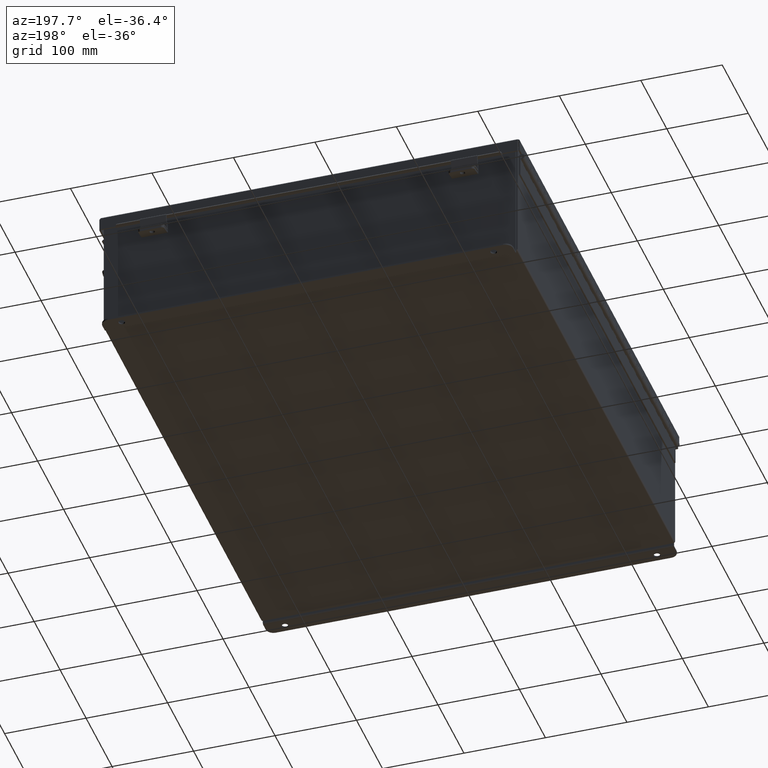
[diagram: clean part render]
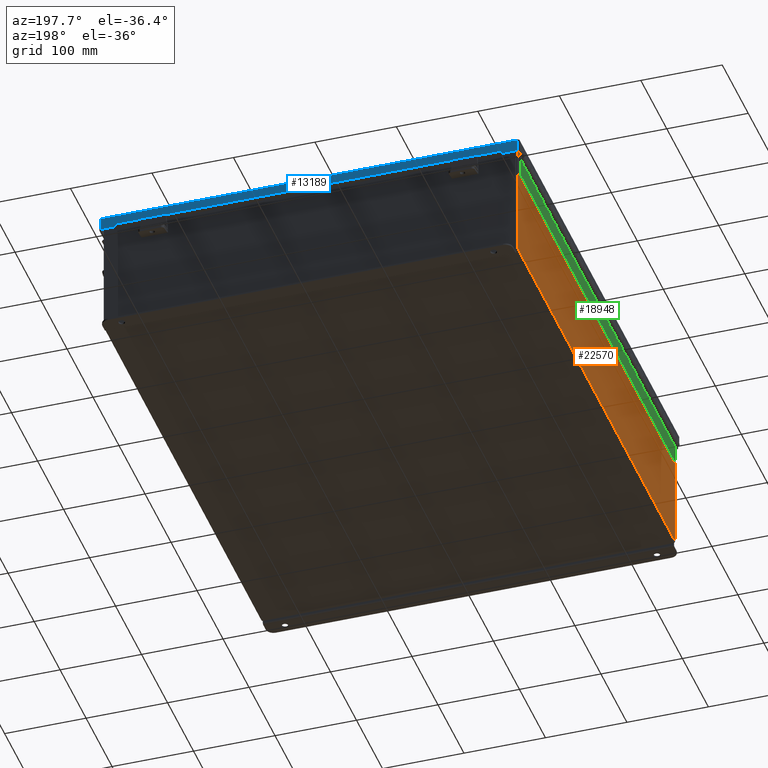
[diagram: same view with three faces highlighted in distinct colors, each labeled with its STEP entity id]
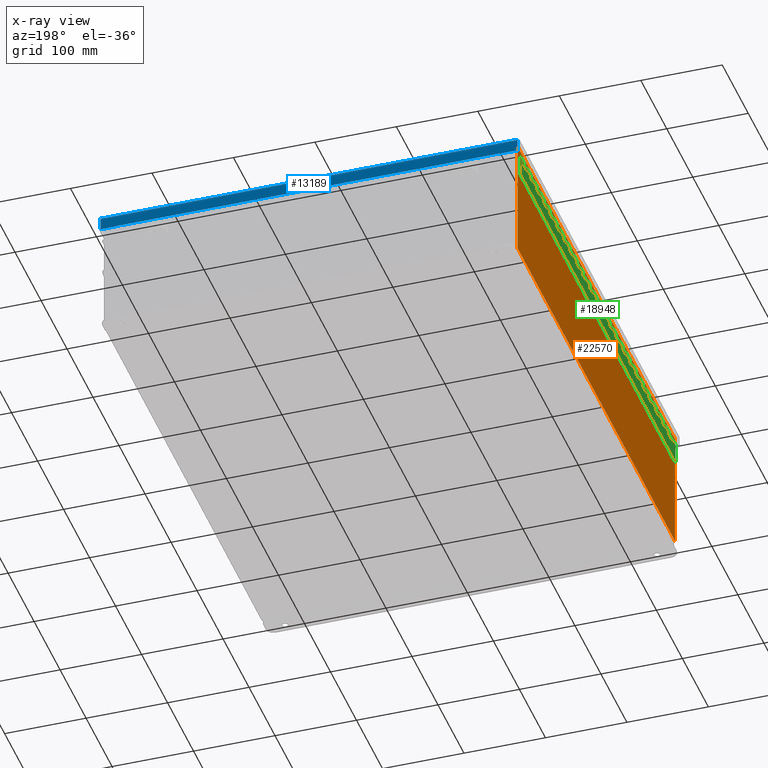
[diagram: x-ray of the same camera — body ghosted, the three highlighted faces saturated]
A machine part, auxiliary view with three faces highlighted in distinct colors.
The next image is the same camera in x-ray (body ghosted, the three faces saturated) — at least one of them is partly hidden behind the body in this view.
Their STEP definitions:

[orange] entity #22570 — the highlighted planar face has unit normal (1, 0, 0).
#1119 = DIRECTION ( 'NONE',  ( 3.361929640444176300E-015, 0.0000000000000000000, -1.000000000000000000 ) ) ;
#1649 = VERTEX_POINT ( 'NONE', #6390 ) ;
#1969 = ORIENTED_EDGE ( 'NONE', *, *, #10669, .F. ) ;
#3997 = LINE ( 'NONE', #7507, #11682 ) ;
#4384 = VECTOR ( 'NONE', #19087, 39.37007874015748100 ) ;
#4734 = ORIENTED_EDGE ( 'NONE', *, *, #4940, .T. ) ;
#4940 = EDGE_CURVE ( 'NONE', #21455, #21863, #18001, .T. ) ;
#5015 = EDGE_CURVE ( 'NONE', #19346, #1649, #3997, .T. ) ;
#5740 = FACE_OUTER_BOUND ( 'NONE', #20997, .T. ) ;
#5786 = ORIENTED_EDGE ( 'NONE', *, *, #5015, .T. ) ;
#6390 = CARTESIAN_POINT ( 'NONE',  ( -10.00000000000000000, 11.92529999999999600, 0.01299999999999985900 ) ) ;
#7324 = CARTESIAN_POINT ( 'NONE',  ( -10.00000000000000000, -11.92530000000000000, -2.942712510675223700E-014 ) ) ;
#7507 = CARTESIAN_POINT ( 'NONE',  ( -10.00000000000000000, 11.92529999999999600, -3.388345214641706500E-014 ) ) ;
#10669 = EDGE_CURVE ( 'NONE', #21455, #1649, #15097, .T. ) ;
#10817 = EDGE_CURVE ( 'NONE', #21863, #19346, #14485, .T. ) ;
#11682 = VECTOR ( 'NONE', #1119, 39.37007874015748100 ) ;
#12249 = VECTOR ( 'NONE', #20097, 39.37007874015748100 ) ;
#14485 = LINE ( 'NONE', #19347, #4384 ) ;
#14646 = AXIS2_PLACEMENT_3D ( 'NONE', #18560, #18094, #18032 ) ;
#15097 = LINE ( 'NONE', #19510, #12249 ) ;
#17434 = VECTOR ( 'NONE', #24722, 39.37007874015748100 ) ;
#18001 = LINE ( 'NONE', #7324, #17434 ) ;
#18032 = DIRECTION ( 'NONE',  ( 3.361929640444175900E-015, 0.0000000000000000000, -1.000000000000000000 ) ) ;
#18094 = DIRECTION ( 'NONE',  ( 1.000000000000000000, 0.0000000000000000000, 3.361929640444175900E-015 ) ) ;
#18443 = CARTESIAN_POINT ( 'NONE',  ( -10.00000000000002000, 11.92529999999999600, 5.837599999999999200 ) ) ;
#18560 = CARTESIAN_POINT ( 'NONE',  ( -10.00000000000000000, 0.0000000000000000000, -3.388345214641706500E-014 ) ) ;
#19087 = DIRECTION ( 'NONE',  ( 0.0000000000000000000, 1.000000000000000000, 0.0000000000000000000 ) ) ;
#19346 = VERTEX_POINT ( 'NONE', #18443 ) ;
#19347 = CARTESIAN_POINT ( 'NONE',  ( -10.00000000000002000, -11.92529999999999600, 5.837599999999999200 ) ) ;
#19433 = PLANE ( 'NONE',  #14646 ) ;
#19510 = CARTESIAN_POINT ( 'NONE',  ( -10.00000000000000000, 11.92529999999999600, 0.01299999999999985900 ) ) ;
#19821 = CARTESIAN_POINT ( 'NONE',  ( -10.00000000000002000, -11.92529999999999500, 5.837599999999999200 ) ) ;
#20097 = DIRECTION ( 'NONE',  ( -0.0000000000000000000, 1.000000000000000000, -0.0000000000000000000 ) ) ;
#20997 = EDGE_LOOP ( 'NONE', ( #23246, #5786, #1969, #4734 ) ) ;
#21455 = VERTEX_POINT ( 'NONE', #23325 ) ;
#21863 = VERTEX_POINT ( 'NONE', #19821 ) ;
#22570 = ADVANCED_FACE ( 'NONE', ( #5740 ), #19433, .F. ) ;
#23246 = ORIENTED_EDGE ( 'NONE', *, *, #10817, .T. ) ;
#23325 = CARTESIAN_POINT ( 'NONE',  ( -10.00000000000000000, -11.92529999999999600, 0.01299999999999985900 ) ) ;
#24722 = DIRECTION ( 'NONE',  ( -3.361929640444176300E-015, 3.735477378271307500E-016, 1.000000000000000000 ) ) ;

[blue] entity #13189 — the highlighted planar face has unit normal (-0, -1, -0).
#521 = EDGE_CURVE ( 'NONE', #7945, #8489, #8785, .T. ) ;
#587 = ORIENTED_EDGE ( 'NONE', *, *, #1817, .T. ) ;
#712 = DIRECTION ( 'NONE',  ( -1.000000000000000000, -3.215975411700707400E-030, -0.0000000000000000000 ) ) ;
#1067 = DIRECTION ( 'NONE',  ( 7.009925220121354700E-014, 1.401985044024265100E-013, -1.000000000000000000 ) ) ;
#1446 = CARTESIAN_POINT ( 'NONE',  ( 0.0000000000000000000, 12.15624999999999800, -4.370956789862821100E-014 ) ) ;
#1817 = EDGE_CURVE ( 'NONE', #18775, #15428, #12842, .T. ) ;
#2030 = DIRECTION ( 'NONE',  ( 1.000000000000000000, 3.215975411700707400E-030, -0.0000000000000000000 ) ) ;
#2512 = EDGE_CURVE ( 'NONE', #8489, #15428, #19374, .T. ) ;
#2583 = VECTOR ( 'NONE', #20141, 39.37007874015748100 ) ;
#2954 = DIRECTION ( 'NONE',  ( -3.347543324056399800E-030, -1.000000000000000000, 3.569293475308532400E-015 ) ) ;
#3667 = EDGE_CURVE ( 'NONE', #22527, #8436, #20920, .T. ) ;
#3717 = CARTESIAN_POINT ( 'NONE',  ( 9.324478932188171100, 12.15625000000000400, 0.5967115427318815400 ) ) ;
#4070 = VERTEX_POINT ( 'NONE', #16818 ) ;
#4364 = VECTOR ( 'NONE', #14906, 39.37007874015748100 ) ;
#5009 = CARTESIAN_POINT ( 'NONE',  ( 9.324478932188171100, 12.15625000000000000, 0.6122999999999994000 ) ) ;
#5298 = EDGE_CURVE ( 'NONE', #22527, #7945, #18241, .T. ) ;
#5598 = CARTESIAN_POINT ( 'NONE',  ( 9.324478932188171100, 12.15625000000000400, 0.5967115427318815400 ) ) ;
#5899 = ORIENTED_EDGE ( 'NONE', *, *, #5298, .F. ) ;
#5935 = ORIENTED_EDGE ( 'NONE', *, *, #521, .F. ) ;
#7325 = CARTESIAN_POINT ( 'NONE',  ( 6.402768735150616900E-018, 12.15625000000000200, 0.6122999999999994000 ) ) ;
#7907 = DIRECTION ( 'NONE',  ( -0.0000000000000000000, 3.569293475308532400E-015, 1.000000000000000000 ) ) ;
#7945 = VERTEX_POINT ( 'NONE', #3717 ) ;
#8436 = VERTEX_POINT ( 'NONE', #12497 ) ;
#8489 = VERTEX_POINT ( 'NONE', #18770 ) ;
#8785 = LINE ( 'NONE', #5598, #12654 ) ;
#10318 = DIRECTION ( 'NONE',  ( 0.0000000000000000000, 3.569293475308532400E-015, 1.000000000000000000 ) ) ;
#11872 = FACE_OUTER_BOUND ( 'NONE', #19472, .T. ) ;
#12048 = DIRECTION ( 'NONE',  ( 0.0000000000000000000, -3.569293475308532400E-015, -1.000000000000000000 ) ) ;
#12491 = EDGE_CURVE ( 'NONE', #22294, #4070, #19857, .T. ) ;
#12497 = CARTESIAN_POINT ( 'NONE',  ( 10.07447893218817300, 12.15625000000000000, 0.6122999999999994000 ) ) ;
#12654 = VECTOR ( 'NONE', #712, 39.37007874015748100 ) ;
#12842 = LINE ( 'NONE', #7325, #18780 ) ;
#13189 = ADVANCED_FACE ( 'NONE', ( #11872 ), #14217, .F. ) ;
#13253 = CARTESIAN_POINT ( 'NONE',  ( -9.324478932188164000, 12.15625000000000400, 0.5967115427318815400 ) ) ;
#13497 = CARTESIAN_POINT ( 'NONE',  ( 10.15625000000003900, 12.15625000000000000, 0.01300000000000010700 ) ) ;
#13735 = VECTOR ( 'NONE', #1067, 39.37007874015748100 ) ;
#13897 = ORIENTED_EDGE ( 'NONE', *, *, #20433, .T. ) ;
#14217 = PLANE ( 'NONE',  #14610 ) ;
#14610 = AXIS2_PLACEMENT_3D ( 'NONE', #1446, #2954, #12048 ) ;
#14790 = CARTESIAN_POINT ( 'NONE',  ( 6.402768735150616900E-018, 12.15625000000000200, 0.6122999999999994000 ) ) ;
#14906 = DIRECTION ( 'NONE',  ( 1.000000000000000000, 3.215538059845590000E-030, 3.362274453740340600E-018 ) ) ;
#15008 = LINE ( 'NONE', #23586, #15316 ) ;
#15206 = ORIENTED_EDGE ( 'NONE', *, *, #22071, .F. ) ;
#15316 = VECTOR ( 'NONE', #10318, 39.37007874015748100 ) ;
#15428 = VERTEX_POINT ( 'NONE', #16754 ) ;
#16089 = CARTESIAN_POINT ( 'NONE',  ( -10.07447893218816400, 12.15625000000000000, 0.01300000000000010700 ) ) ;
#16181 = VECTOR ( 'NONE', #2030, 39.37007874015748100 ) ;
#16613 = LINE ( 'NONE', #22960, #20710 ) ;
#16754 = CARTESIAN_POINT ( 'NONE',  ( -9.324478932188165800, 12.15625000000000000, 0.6123000000000005100 ) ) ;
#16818 = CARTESIAN_POINT ( 'NONE',  ( 10.07447893218817300, 12.15625000000000000, 0.01300000000000010700 ) ) ;
#16976 = ORIENTED_EDGE ( 'NONE', *, *, #12491, .F. ) ;
#18241 = LINE ( 'NONE', #5009, #13735 ) ;
#18362 = ORIENTED_EDGE ( 'NONE', *, *, #3667, .T. ) ;
#18770 = CARTESIAN_POINT ( 'NONE',  ( -9.324478932188164000, 12.15625000000000000, 0.5967115427318815400 ) ) ;
#18775 = VERTEX_POINT ( 'NONE', #24039 ) ;
#18780 = VECTOR ( 'NONE', #22235, 39.37007874015748100 ) ;
#19374 = LINE ( 'NONE', #13253, #2583 ) ;
#19472 = EDGE_LOOP ( 'NONE', ( #5899, #18362, #15206, #16976, #13897, #587, #22803, #5935 ) ) ;
#19548 = CARTESIAN_POINT ( 'NONE',  ( 9.324478932188171100, 12.15625000000000000, 0.6122999999999994000 ) ) ;
#19857 = LINE ( 'NONE', #13497, #16181 ) ;
#20141 = DIRECTION ( 'NONE',  ( -7.009925220121077000E-014, -1.401985044024209900E-013, 1.000000000000000000 ) ) ;
#20433 = EDGE_CURVE ( 'NONE', #22294, #18775, #15008, .T. ) ;
#20710 = VECTOR ( 'NONE', #7907, 39.37007874015748100 ) ;
#20920 = LINE ( 'NONE', #14790, #4364 ) ;
#22071 = EDGE_CURVE ( 'NONE', #4070, #8436, #16613, .T. ) ;
#22235 = DIRECTION ( 'NONE',  ( 1.000000000000000000, 3.215538059845590000E-030, 3.362274453740340600E-018 ) ) ;
#22294 = VERTEX_POINT ( 'NONE', #16089 ) ;
#22527 = VERTEX_POINT ( 'NONE', #19548 ) ;
#22803 = ORIENTED_EDGE ( 'NONE', *, *, #2512, .F. ) ;
#22960 = CARTESIAN_POINT ( 'NONE',  ( 10.07447893218817300, 12.15625000000000000, 0.0000000000000000000 ) ) ;
#23586 = CARTESIAN_POINT ( 'NONE',  ( -10.07447893218816400, 12.15625000000000000, -4.370956789862821100E-014 ) ) ;
#24039 = CARTESIAN_POINT ( 'NONE',  ( -10.07447893218816400, 12.15625000000000000, 0.6123000000000005100 ) ) ;

[green] entity #18948 — the highlighted planar face has unit normal (1, -0, 0).
#29 = VERTEX_POINT ( 'NONE', #5831 ) ;
#42 = VERTEX_POINT ( 'NONE', #9140 ) ;
#50 = EDGE_CURVE ( 'NONE', #11422, #3940, #6836, .T. ) ;
#77 = CARTESIAN_POINT ( 'NONE',  ( 0.2730000000000000200, 21.99999999999999600, 0.0000000000000000000 ) ) ;
#160 = VERTEX_POINT ( 'NONE', #2050 ) ;
#168 = CARTESIAN_POINT ( 'NONE',  ( 0.2730000000000000200, -20.00000000000000000, 0.0000000000000000000 ) ) ;
#196 = VERTEX_POINT ( 'NONE', #14777 ) ;
#206 = ORIENTED_EDGE ( 'NONE', *, *, #12784, .F. ) ;
#241 = EDGE_CURVE ( 'NONE', #9209, #11065, #16770, .T. ) ;
#245 = EDGE_CURVE ( 'NONE', #7259, #11746, #21893, .T. ) ;
#251 = DIRECTION ( 'NONE',  ( -1.000000000000000000, 0.0000000000000000000, 0.0000000000000000000 ) ) ;
#277 = DIRECTION ( 'NONE',  ( 0.0000000000000000000, 1.000000000000000000, 0.0000000000000000000 ) ) ;
#306 = VECTOR ( 'NONE', #20054, 39.37007874015748100 ) ;
#340 = EDGE_CURVE ( 'NONE', #18390, #14413, #24431, .T. ) ;
#353 = VERTEX_POINT ( 'NONE', #12743 ) ;
#413 = DIRECTION ( 'NONE',  ( 0.0000000000000000000, 1.000000000000000000, 0.0000000000000000000 ) ) ;
#443 = VERTEX_POINT ( 'NONE', #20572 ) ;
#495 = EDGE_CURVE ( 'NONE', #4338, #9550, #3369, .T. ) ;
#513 = VERTEX_POINT ( 'NONE', #17499 ) ;
#562 = PLANE ( 'NONE',  #18725 ) ;
#578 = DIRECTION ( 'NONE',  ( -1.000000000000000000, 0.0000000000000000000, 0.0000000000000000000 ) ) ;
#600 = VERTEX_POINT ( 'NONE', #2555 ) ;
#626 = CARTESIAN_POINT ( 'NONE',  ( 0.1365000000000000100, 0.0000000000000000000, -1.707404996040164500E-017 ) ) ;
#629 = CARTESIAN_POINT ( 'NONE',  ( 0.1365000000000000100, 9.999999999999994700, -1.707404996040164500E-017 ) ) ;
#659 = CARTESIAN_POINT ( 'NONE',  ( 0.1365000000000000100, 0.0000000000000000000, -1.707404996040164500E-017 ) ) ;
#715 = CARTESIAN_POINT ( 'NONE',  ( 0.1365000000000000100, 16.99999999999999300, -1.707404996040164500E-017 ) ) ;
#733 = VECTOR ( 'NONE', #4505, 39.37007874015748100 ) ;
#835 = LINE ( 'NONE', #4662, #4863 ) ;
#836 = EDGE_CURVE ( 'NONE', #3209, #15869, #20849, .T. ) ;
#845 = LINE ( 'NONE', #19924, #5333 ) ;
#859 = DIRECTION ( 'NONE',  ( -1.000000000000000000, 0.0000000000000000000, 0.0000000000000000000 ) ) ;
#902 = VECTOR ( 'NONE', #12496, 39.37007874015748100 ) ;
#905 = DIRECTION ( 'NONE',  ( 0.0000000000000000000, 1.000000000000000000, 0.0000000000000000000 ) ) ;
#928 = CARTESIAN_POINT ( 'NONE',  ( 0.1365000000000000100, 13.49999999999999100, -1.707404996040164500E-017 ) ) ;
#936 = VERTEX_POINT ( 'NONE', #9586 ) ;
#946 = EDGE_CURVE ( 'NONE', #936, #196, #17054, .T. ) ;
#947 = DIRECTION ( 'NONE',  ( 0.0000000000000000000, 1.000000000000000000, 0.0000000000000000000 ) ) ;
#952 = ORIENTED_EDGE ( 'NONE', *, *, #2818, .F. ) ;
#990 = DIRECTION ( 'NONE',  ( -1.000000000000000000, 0.0000000000000000000, 0.0000000000000000000 ) ) ;
#1006 = DIRECTION ( 'NONE',  ( -1.000000000000000000, 0.0000000000000000000, 0.0000000000000000000 ) ) ;
#1030 = CARTESIAN_POINT ( 'NONE',  ( 0.1365000000000000100, 0.0000000000000000000, -1.707404996040164500E-017 ) ) ;
#1050 = CARTESIAN_POINT ( 'NONE',  ( 0.2730000000000000200, 19.49999999999999300, 0.0000000000000000000 ) ) ;
#1098 = VECTOR ( 'NONE', #5355, 39.37007874015748100 ) ;
#1163 = CARTESIAN_POINT ( 'NONE',  ( 0.1365000000000000100, 22.49999999999999300, -1.707404996040164500E-017 ) ) ;
#1244 = CARTESIAN_POINT ( 'NONE',  ( 0.1365000000000000100, 0.0000000000000000000, -1.707404996040164500E-017 ) ) ;
#1259 = VERTEX_POINT ( 'NONE', #19699 ) ;
#1324 = CARTESIAN_POINT ( 'NONE',  ( 0.0000000000000000000, 11.49999999999999300, 0.0000000000000000000 ) ) ;
#1338 = ORIENTED_EDGE ( 'NONE', *, *, #14002, .F. ) ;
#1407 = VECTOR ( 'NONE', #18213, 39.37007874015748100 ) ;
#1419 = VERTEX_POINT ( 'NONE', #11896 ) ;
#1423 = ORIENTED_EDGE ( 'NONE', *, *, #13467, .F. ) ;
#1494 = CARTESIAN_POINT ( 'NONE',  ( 0.0000000000000000000, 3.499999999999992900, 0.0000000000000000000 ) ) ;
#1525 = LINE ( 'NONE', #7637, #23437 ) ;
#1561 = VERTEX_POINT ( 'NONE', #5288 ) ;
#1570 = LINE ( 'NONE', #9714, #1573 ) ;
#1573 = VECTOR ( 'NONE', #11235, 39.37007874015748100 ) ;
#1618 = LINE ( 'NONE', #12873, #21822 ) ;
#1714 = EDGE_CURVE ( 'NONE', #17070, #23678, #21262, .T. ) ;
#1811 = VECTOR ( 'NONE', #2698, 39.37007874015748100 ) ;
#1882 = CARTESIAN_POINT ( 'NONE',  ( 0.1365000000000000100, 5.499999999999992900, -1.707404996040164500E-017 ) ) ;
#1941 = CARTESIAN_POINT ( 'NONE',  ( 0.1365000000000000100, 18.49999999999999300, -1.707404996040164500E-017 ) ) ;
#1946 = CARTESIAN_POINT ( 'NONE',  ( 0.0000000000000000000, 7.999999999999993800, 0.0000000000000000000 ) ) ;
#1960 = CARTESIAN_POINT ( 'NONE',  ( 0.2730000000000000200, -14.00000000000000000, 0.0000000000000000000 ) ) ;
#2009 = VECTOR ( 'NONE', #5037, 39.37007874015748100 ) ;
#2037 = VERTEX_POINT ( 'NONE', #13922 ) ;
#2050 = CARTESIAN_POINT ( 'NONE',  ( 0.1365000000000000100, 19.49999999999999300, -1.707404996040164500E-017 ) ) ;
#2136 = VERTEX_POINT ( 'NONE', #16685 ) ;
#2166 = VECTOR ( 'NONE', #20506, 39.37007874015748100 ) ;
#2190 = ORIENTED_EDGE ( 'NONE', *, *, #9594, .F. ) ;
#2220 = DIRECTION ( 'NONE',  ( 0.0000000000000000000, 1.000000000000000000, 0.0000000000000000000 ) ) ;
#2231 = VECTOR ( 'NONE', #6279, 39.37007874015748100 ) ;
#2240 = DIRECTION ( 'NONE',  ( -5.812442539711198700E-018, 1.000000000000000000, 0.0000000000000000000 ) ) ;
#2269 = ORIENTED_EDGE ( 'NONE', *, *, #5909, .F. ) ;
#2289 = ORIENTED_EDGE ( 'NONE', *, *, #5054, .T. ) ;
#2311 = VERTEX_POINT ( 'NONE', #10735 ) ;
#2341 = VECTOR ( 'NONE', #16710, 39.37007874015748100 ) ;
#2342 = ORIENTED_EDGE ( 'NONE', *, *, #11413, .F. ) ;
#2383 = CARTESIAN_POINT ( 'NONE',  ( 0.2730000000000000200, 11.49999999999999300, 0.0000000000000000000 ) ) ;
#2389 = VERTEX_POINT ( 'NONE', #3778 ) ;
#2428 = VECTOR ( 'NONE', #6700, 39.37007874015748100 ) ;
#2442 = VERTEX_POINT ( 'NONE', #22662 ) ;
#2451 = CARTESIAN_POINT ( 'NONE',  ( 0.1365000000000000100, 21.99999999999999600, -1.707404996040164500E-017 ) ) ;
#2514 = CARTESIAN_POINT ( 'NONE',  ( 0.1365000000000000100, 15.49999999999999300, -1.707404996040164500E-017 ) ) ;
#2551 = VECTOR ( 'NONE', #4376, 39.37007874015748100 ) ;
#2555 = CARTESIAN_POINT ( 'NONE',  ( 0.2730000000000000200, 7.499999999999992000, 0.0000000000000000000 ) ) ;
#2667 = LINE ( 'NONE', #13295, #11622 ) ;
#2669 = VERTEX_POINT ( 'NONE', #2514 ) ;
#2679 = DIRECTION ( 'NONE',  ( -1.000000000000000000, 0.0000000000000000000, -0.0000000000000000000 ) ) ;
#2698 = DIRECTION ( 'NONE',  ( -1.000000000000000000, 0.0000000000000000000, 0.0000000000000000000 ) ) ;
#2743 = CARTESIAN_POINT ( 'NONE',  ( 0.1365000000000000100, 0.0000000000000000000, -1.707404996040164500E-017 ) ) ;
#2766 = LINE ( 'NONE', #23798, #7795 ) ;
#2788 = VECTOR ( 'NONE', #7704, 39.37007874015748100 ) ;
#2818 = EDGE_CURVE ( 'NONE', #23678, #19847, #16561, .T. ) ;
#2850 = ORIENTED_EDGE ( 'NONE', *, *, #23188, .T. ) ;
#2858 = CARTESIAN_POINT ( 'NONE',  ( 0.2730000000000000200, 1.999999999999994000, 0.0000000000000000000 ) ) ;
#2877 = EDGE_CURVE ( 'NONE', #23704, #22625, #22031, .T. ) ;
#2900 = CARTESIAN_POINT ( 'NONE',  ( 0.2730000000000000200, 7.999999999999993800, 0.0000000000000000000 ) ) ;
#2902 = DIRECTION ( 'NONE',  ( -1.000000000000000000, 0.0000000000000000000, 0.0000000000000000000 ) ) ;
#2938 = VECTOR ( 'NONE', #16141, 39.37007874015748100 ) ;
#2972 = CARTESIAN_POINT ( 'NONE',  ( 0.1365000000000000100, 20.49999999999999300, -1.707404996040164500E-017 ) ) ;
#3052 = VERTEX_POINT ( 'NONE', #7594 ) ;
#3061 = VECTOR ( 'NONE', #11978, 39.37007874015748100 ) ;
#3063 = ORIENTED_EDGE ( 'NONE', *, *, #12222, .F. ) ;
#3128 = VECTOR ( 'NONE', #19282, 39.37007874015748100 ) ;
#3186 = VERTEX_POINT ( 'NONE', #11280 ) ;
#3209 = VERTEX_POINT ( 'NONE', #10368 ) ;
#3246 = VERTEX_POINT ( 'NONE', #15556 ) ;
#3270 = ORIENTED_EDGE ( 'NONE', *, *, #13369, .F. ) ;
#3278 = CARTESIAN_POINT ( 'NONE',  ( 0.0000000000000000000, 2.999999999999993300, 0.0000000000000000000 ) ) ;
#3287 = VECTOR ( 'NONE', #2902, 39.37007874015748100 ) ;
#3322 = DIRECTION ( 'NONE',  ( 0.0000000000000000000, 1.000000000000000000, 0.0000000000000000000 ) ) ;
#3369 = LINE ( 'NONE', #23313, #11661 ) ;
#3386 = FACE_OUTER_BOUND ( 'NONE', #7603, .T. ) ;
#3388 = CARTESIAN_POINT ( 'NONE',  ( 0.2730000000000000200, -16.00000000000000000, 0.0000000000000000000 ) ) ;
#3483 = VECTOR ( 'NONE', #3925, 39.37007874015748100 ) ;
#3547 = DIRECTION ( 'NONE',  ( -1.000000000000000000, 0.0000000000000000000, 0.0000000000000000000 ) ) ;
#3586 = CARTESIAN_POINT ( 'NONE',  ( 0.2730000000000000200, -2.000000000000000000, 0.0000000000000000000 ) ) ;
#3750 = EDGE_CURVE ( 'NONE', #3186, #12317, #14209, .T. ) ;
#3778 = CARTESIAN_POINT ( 'NONE',  ( 0.1365000000000000100, 7.499999999999992000, -1.707404996040164500E-017 ) ) ;
#3787 = EDGE_CURVE ( 'NONE', #11862, #10284, #5404, .T. ) ;
#3797 = ORIENTED_EDGE ( 'NONE', *, *, #9481, .F. ) ;
#3807 = CARTESIAN_POINT ( 'NONE',  ( 0.1365000000000000100, 0.0000000000000000000, -1.707404996040164500E-017 ) ) ;
#3847 = CARTESIAN_POINT ( 'NONE',  ( 0.2730000000000000200, 20.99999999999999600, 0.0000000000000000000 ) ) ;
#3861 = VERTEX_POINT ( 'NONE', #5920 ) ;
#3924 = EDGE_CURVE ( 'NONE', #4430, #23527, #13348, .T. ) ;
#3925 = DIRECTION ( 'NONE',  ( 0.0000000000000000000, 1.000000000000000000, 0.0000000000000000000 ) ) ;
#3940 = VERTEX_POINT ( 'NONE', #21784 ) ;
#3956 = ORIENTED_EDGE ( 'NONE', *, *, #21235, .T. ) ;
#4013 = VECTOR ( 'NONE', #23020, 39.37007874015748100 ) ;
#4025 = VERTEX_POINT ( 'NONE', #7243 ) ;
#4031 = CARTESIAN_POINT ( 'NONE',  ( 0.0000000000000000000, 22.99999999999999300, 0.0000000000000000000 ) ) ;
#4084 = LINE ( 'NONE', #11215, #2231 ) ;
#4146 = CARTESIAN_POINT ( 'NONE',  ( 0.0000000000000000000, 7.499999999999992000, 0.0000000000000000000 ) ) ;
#4162 = LINE ( 'NONE', #13015, #18749 ) ;
#4182 = CARTESIAN_POINT ( 'NONE',  ( 0.1365000000000000100, 15.99999999999999500, -1.707404996040164500E-017 ) ) ;
#4209 = CARTESIAN_POINT ( 'NONE',  ( 0.0000000000000000000, 17.99999999999999300, 0.0000000000000000000 ) ) ;
#4214 = CARTESIAN_POINT ( 'NONE',  ( 0.0000000000000000000, 16.49999999999999300, 0.0000000000000000000 ) ) ;
#4288 = VERTEX_POINT ( 'NONE', #7565 ) ;
#4324 = DIRECTION ( 'NONE',  ( -1.000000000000000000, 0.0000000000000000000, 0.0000000000000000000 ) ) ;
#4338 = VERTEX_POINT ( 'NONE', #22517 ) ;
#4347 = CARTESIAN_POINT ( 'NONE',  ( 0.1365000000000000100, 0.0000000000000000000, -1.707404996040164500E-017 ) ) ;
#4366 = VERTEX_POINT ( 'NONE', #9079 ) ;
#4376 = DIRECTION ( 'NONE',  ( 0.0000000000000000000, 1.000000000000000000, 0.0000000000000000000 ) ) ;
#4401 = ORIENTED_EDGE ( 'NONE', *, *, #16866, .F. ) ;
#4421 = LINE ( 'NONE', #24533, #18063 ) ;
#4430 = VERTEX_POINT ( 'NONE', #4965 ) ;
#4451 = EDGE_CURVE ( 'NONE', #11026, #8893, #24155, .T. ) ;
#4505 = DIRECTION ( 'NONE',  ( 0.0000000000000000000, 1.000000000000000000, 0.0000000000000000000 ) ) ;
#4519 = LINE ( 'NONE', #23495, #16669 ) ;
#4549 = VECTOR ( 'NONE', #2240, 39.37007874015748100 ) ;
#4550 = CARTESIAN_POINT ( 'NONE',  ( 0.0000000000000000000, 4.499999999999992000, 0.0000000000000000000 ) ) ;
#4647 = ORIENTED_EDGE ( 'NONE', *, *, #7118, .F. ) ;
#4651 = DIRECTION ( 'NONE',  ( 0.0000000000000000000, 1.000000000000000000, 0.0000000000000000000 ) ) ;
#4653 = VECTOR ( 'NONE', #6074, 39.37007874015748100 ) ;
#4662 = CARTESIAN_POINT ( 'NONE',  ( 0.1365000000000000100, 0.0000000000000000000, -1.707404996040164500E-017 ) ) ;
#4679 = LINE ( 'NONE', #1030, #3483 ) ;
#4717 = LINE ( 'NONE', #6448, #3287 ) ;
#4738 = CARTESIAN_POINT ( 'NONE',  ( 0.0000000000000000000, 15.49999999999999300, 0.0000000000000000000 ) ) ;
#4749 = CARTESIAN_POINT ( 'NONE',  ( 0.0000000000000000000, 9.499999999999992900, 0.0000000000000000000 ) ) ;
#4796 = ORIENTED_EDGE ( 'NONE', *, *, #18386, .T. ) ;
#4854 = LINE ( 'NONE', #19416, #4549 ) ;
#4855 = VECTOR ( 'NONE', #8009, 39.37007874015748100 ) ;
#4863 = VECTOR ( 'NONE', #22127, 39.37007874015748100 ) ;
#4864 = VECTOR ( 'NONE', #10238, 39.37007874015748100 ) ;
#4881 = ORIENTED_EDGE ( 'NONE', *, *, #17152, .F. ) ;
#4961 = LINE ( 'NONE', #4976, #19566 ) ;
#4965 = CARTESIAN_POINT ( 'NONE',  ( 0.2730000000000000200, 4.499999999999992000, 0.0000000000000000000 ) ) ;
#4966 = VECTOR ( 'NONE', #16850, 39.37007874015748100 ) ;
#4976 = CARTESIAN_POINT ( 'NONE',  ( 0.0000000000000000000, 9.999999999999994700, 0.0000000000000000000 ) ) ;
#5016 = EDGE_CURVE ( 'NONE', #10171, #15826, #17146, .T. ) ;
#5037 = DIRECTION ( 'NONE',  ( 0.0000000000000000000, 1.000000000000000000, 0.0000000000000000000 ) ) ;
#5054 = EDGE_CURVE ( 'NONE', #9751, #18845, #23863, .T. ) ;
#5277 = ORIENTED_EDGE ( 'NONE', *, *, #11689, .T. ) ;
#5288 = CARTESIAN_POINT ( 'NONE',  ( 0.2730000000000000200, 16.49999999999999300, 0.0000000000000000000 ) ) ;
#5333 = VECTOR ( 'NONE', #20481, 39.37007874015748100 ) ;
#5347 = ORIENTED_EDGE ( 'NONE', *, *, #5730, .F. ) ;
#5352 = LINE ( 'NONE', #16810, #23219 ) ;
#5355 = DIRECTION ( 'NONE',  ( -1.000000000000000000, 0.0000000000000000000, 0.0000000000000000000 ) ) ;
#5390 = VECTOR ( 'NONE', #990, 39.37007874015748100 ) ;
#5397 = CARTESIAN_POINT ( 'NONE',  ( 0.0000000000000000000, 18.99999999999999300, 0.0000000000000000000 ) ) ;
#5404 = LINE ( 'NONE', #13362, #733 ) ;
#5405 = DIRECTION ( 'NONE',  ( -1.000000000000000000, 0.0000000000000000000, 0.0000000000000000000 ) ) ;
#5421 = VECTOR ( 'NONE', #22986, 39.37007874015748100 ) ;
#5465 = LINE ( 'NONE', #18788, #22974 ) ;
#5466 = CARTESIAN_POINT ( 'NONE',  ( 0.2730000000000000200, 0.0000000000000000000, 0.0000000000000000000 ) ) ;
#5488 = VECTOR ( 'NONE', #22859, 39.37007874015748100 ) ;
#5587 = DIRECTION ( 'NONE',  ( -1.000000000000000000, 0.0000000000000000000, 0.0000000000000000000 ) ) ;
#5599 = VECTOR ( 'NONE', #22789, 39.37007874015748100 ) ;
#5730 = EDGE_CURVE ( 'NONE', #9550, #15056, #12795, .T. ) ;
#5779 = CARTESIAN_POINT ( 'NONE',  ( 0.0000000000000000000, 6.999999999999993800, 0.0000000000000000000 ) ) ;
#5793 = EDGE_CURVE ( 'NONE', #8241, #1259, #4162, .T. ) ;
#5831 = CARTESIAN_POINT ( 'NONE',  ( 1.136500000000000100, 23.50000000000000000, 0.0000000000000000000 ) ) ;
#5852 = VECTOR ( 'NONE', #15189, 39.37007874015748100 ) ;
#5856 = CARTESIAN_POINT ( 'NONE',  ( 0.1365000000000000100, 1.999999999999994000, -1.707404996040164500E-017 ) ) ;
#5870 = EDGE_CURVE ( 'NONE', #7580, #4338, #22520, .T. ) ;
#5909 = EDGE_CURVE ( 'NONE', #3246, #11026, #13999, .T. ) ;
#5920 = CARTESIAN_POINT ( 'NONE',  ( 0.2730000000000000200, 17.49999999999999300, 0.0000000000000000000 ) ) ;
#5936 = CARTESIAN_POINT ( 'NONE',  ( 0.2730000000000000200, 12.49999999999999100, 0.0000000000000000000 ) ) ;
#5981 = LINE ( 'NONE', #14364, #1407 ) ;
#6050 = EDGE_CURVE ( 'NONE', #17409, #11813, #13730, .T. ) ;
#6074 = DIRECTION ( 'NONE',  ( 0.0000000000000000000, 1.000000000000000000, 0.0000000000000000000 ) ) ;
#6114 = ORIENTED_EDGE ( 'NONE', *, *, #18921, .F. ) ;
#6279 = DIRECTION ( 'NONE',  ( -1.000000000000000000, 0.0000000000000000000, 0.0000000000000000000 ) ) ;
#6292 = VECTOR ( 'NONE', #18331, 39.37007874015748100 ) ;
#6446 = CARTESIAN_POINT ( 'NONE',  ( 0.0000000000000000000, 1.999999999999994000, 0.0000000000000000000 ) ) ;
#6448 = CARTESIAN_POINT ( 'NONE',  ( 0.0000000000000000000, 4.999999999999993800, 0.0000000000000000000 ) ) ;
#6451 = CARTESIAN_POINT ( 'NONE',  ( 0.2730000000000000200, 10.49999999999999300, 0.0000000000000000000 ) ) ;
#6464 = VECTOR ( 'NONE', #20390, 39.37007874015748100 ) ;
#6491 = EDGE_CURVE ( 'NONE', #600, #12287, #19772, .T. ) ;
#6530 = EDGE_CURVE ( 'NONE', #14621, #2669, #16272, .T. ) ;
#6581 = ORIENTED_EDGE ( 'NONE', *, *, #1714, .F. ) ;
#6665 = CARTESIAN_POINT ( 'NONE',  ( 0.2730000000000000200, 4.999999999999993800, 0.0000000000000000000 ) ) ;
#6699 = VERTEX_POINT ( 'NONE', #12128 ) ;
#6700 = DIRECTION ( 'NONE',  ( -1.000000000000000000, 0.0000000000000000000, 0.0000000000000000000 ) ) ;
#6746 = VECTOR ( 'NONE', #9654, 39.37007874015748100 ) ;
#6794 = CARTESIAN_POINT ( 'NONE',  ( 0.1365000000000000100, 13.99999999999999300, -1.707404996040164500E-017 ) ) ;
#6799 = ORIENTED_EDGE ( 'NONE', *, *, #16489, .F. ) ;
#6836 = LINE ( 'NONE', #23229, #3128 ) ;
#6962 = ORIENTED_EDGE ( 'NONE', *, *, #12095, .T. ) ;
#6989 = CARTESIAN_POINT ( 'NONE',  ( 0.2730000000000000200, 21.49999999999999300, 0.0000000000000000000 ) ) ;
#6991 = CARTESIAN_POINT ( 'NONE',  ( 0.0000000000000000000, 20.99999999999999600, 0.0000000000000000000 ) ) ;
#7000 = ORIENTED_EDGE ( 'NONE', *, *, #6491, .F. ) ;
#7004 = ORIENTED_EDGE ( 'NONE', *, *, #10179, .T. ) ;
#7098 = CARTESIAN_POINT ( 'NONE',  ( 0.1365000000000000100, 0.0000000000000000000, -1.707404996040164500E-017 ) ) ;
#7117 = DIRECTION ( 'NONE',  ( 0.0000000000000000000, 1.000000000000000000, 0.0000000000000000000 ) ) ;
#7118 = EDGE_CURVE ( 'NONE', #4288, #16084, #10244, .T. ) ;
#7220 = CARTESIAN_POINT ( 'NONE',  ( 0.2730000000000000200, 6.999999999999993800, 0.0000000000000000000 ) ) ;
#7240 = DIRECTION ( 'NONE',  ( -1.000000000000000000, 0.0000000000000000000, 0.0000000000000000000 ) ) ;
#7243 = CARTESIAN_POINT ( 'NONE',  ( 0.1365000000000000100, 12.99999999999999300, -1.707404996040164500E-017 ) ) ;
#7255 = VERTEX_POINT ( 'NONE', #715 ) ;
#7259 = VERTEX_POINT ( 'NONE', #3847 ) ;
#7274 = VECTOR ( 'NONE', #251, 39.37007874015748100 ) ;
#7300 = CARTESIAN_POINT ( 'NONE',  ( 0.2730000000000000200, -18.00000000000000000, 0.0000000000000000000 ) ) ;
#7341 = EDGE_CURVE ( 'NONE', #20941, #16302, #20192, .T. ) ;
#7366 = CARTESIAN_POINT ( 'NONE',  ( 0.2730000000000000200, 9.499999999999992900, 0.0000000000000000000 ) ) ;
#7380 = LINE ( 'NONE', #20874, #5488 ) ;
#7412 = DIRECTION ( 'NONE',  ( 0.0000000000000000000, 1.000000000000000000, 0.0000000000000000000 ) ) ;
#7456 = ORIENTED_EDGE ( 'NONE', *, *, #8723, .F. ) ;
#7512 = DIRECTION ( 'NONE',  ( 0.0000000000000000000, 1.000000000000000000, 0.0000000000000000000 ) ) ;
#7565 = CARTESIAN_POINT ( 'NONE',  ( 0.1365000000000000100, 19.99999999999999300, -1.707404996040164500E-017 ) ) ;
#7580 = VERTEX_POINT ( 'NONE', #11859 ) ;
#7594 = CARTESIAN_POINT ( 'NONE',  ( 0.2730000000000000200, 6.499999999999992000, 0.0000000000000000000 ) ) ;
#7603 = EDGE_LOOP ( 'NONE', ( #13130, #12212, #19892, #3956, #22646, #22128, #1338, #21386, #21301, #19123, #23199, #17887, #22387, #11090, #19371, #11759, #22354, #4647, #14288, #24400, #13104, #2342, #21663, #16017, #11633, #3063, #3270, #15498, #2850, #8318, #2190, #8978, #4796, #20180, #2269, #19863, #21379, #17101, #19823, #16570, #22790, #5347, #16919, #17450, #7004, #8544, #16649, #10682, #11236, #3797, #19726, #16757, #22176, #20544, #9614, #6799, #18576, #23481, #4401, #4881, #6962, #7456, #16948, #21978, #22822, #19321, #21286, #7000, #11878, #21073, #17093, #1423, #12625, #206, #11056, #20934, #18436, #20520, #21472, #22006, #13965, #14235, #24063, #19533, #2289, #23880, #952, #6581, #20152, #8776, #21214, #22415, #5277, #12891, #24331, #6114 ) ) ;
#7627 = LINE ( 'NONE', #14510, #10233 ) ;
#7637 = CARTESIAN_POINT ( 'NONE',  ( 0.0000000000000000000, 16.99999999999999300, 0.0000000000000000000 ) ) ;
#7642 = CARTESIAN_POINT ( 'NONE',  ( 0.0000000000000000000, 8.999999999999994700, 0.0000000000000000000 ) ) ;
#7704 = DIRECTION ( 'NONE',  ( -1.000000000000000000, 0.0000000000000000000, 0.0000000000000000000 ) ) ;
#7726 = CARTESIAN_POINT ( 'NONE',  ( 1.136499999999999800, 23.50000000000000000, 0.0000000000000000000 ) ) ;
#7760 = CARTESIAN_POINT ( 'NONE',  ( 0.1365000000000000100, 0.0000000000000000000, -1.707404996040164500E-017 ) ) ;
#7795 = VECTOR ( 'NONE', #413, 39.37007874015748100 ) ;
#7836 = CARTESIAN_POINT ( 'NONE',  ( 0.1365000000000000100, 20.99999999999999600, -1.707404996040164500E-017 ) ) ;
#7852 = CARTESIAN_POINT ( 'NONE',  ( 0.0000000000000000000, 18.49999999999999300, 0.0000000000000000000 ) ) ;
#7860 = LINE ( 'NONE', #22802, #21281 ) ;
#7910 = CARTESIAN_POINT ( 'NONE',  ( 0.0000000000000000000, 11.99999999999999500, 0.0000000000000000000 ) ) ;
#7912 = CARTESIAN_POINT ( 'NONE',  ( 0.0000000000000000000, 3.999999999999994700, 0.0000000000000000000 ) ) ;
#7952 = DIRECTION ( 'NONE',  ( -1.000000000000000000, 0.0000000000000000000, 0.0000000000000000000 ) ) ;
#8009 = DIRECTION ( 'NONE',  ( -1.000000000000000000, 0.0000000000000000000, 0.0000000000000000000 ) ) ;
#8219 = CARTESIAN_POINT ( 'NONE',  ( 0.1365000000000000100, 3.499999999999992900, -1.707404996040164500E-017 ) ) ;
#8241 = VERTEX_POINT ( 'NONE', #19524 ) ;
#8260 = VERTEX_POINT ( 'NONE', #16194 ) ;
#8267 = EDGE_CURVE ( 'NONE', #22395, #3940, #22474, .T. ) ;
#8313 = CARTESIAN_POINT ( 'NONE',  ( 0.0000000000000000000, 14.99999999999999500, 0.0000000000000000000 ) ) ;
#8318 = ORIENTED_EDGE ( 'NONE', *, *, #13628, .F. ) ;
#8401 = LINE ( 'NONE', #4214, #2788 ) ;
#8458 = LINE ( 'NONE', #5779, #5599 ) ;
#8512 = VERTEX_POINT ( 'NONE', #928 ) ;
#8513 = CARTESIAN_POINT ( 'NONE',  ( 0.0000000000000000000, 12.99999999999999300, 0.0000000000000000000 ) ) ;
#8544 = ORIENTED_EDGE ( 'NONE', *, *, #12759, .F. ) ;
#8576 = DIRECTION ( 'NONE',  ( 0.0000000000000000000, 1.000000000000000000, 0.0000000000000000000 ) ) ;
#8616 = VECTOR ( 'NONE', #18587, 39.37007874015748100 ) ;
#8635 = CARTESIAN_POINT ( 'NONE',  ( 0.0000000000000000000, 19.49999999999999300, 0.0000000000000000000 ) ) ;
#8703 = CARTESIAN_POINT ( 'NONE',  ( 0.1365000000000000100, 14.49999999999999300, -1.707404996040164500E-017 ) ) ;
#8723 = EDGE_CURVE ( 'NONE', #12317, #24458, #21882, .T. ) ;
#8776 = ORIENTED_EDGE ( 'NONE', *, *, #17867, .F. ) ;
#8792 = DIRECTION ( 'NONE',  ( -1.000000000000000000, 0.0000000000000000000, 0.0000000000000000000 ) ) ;
#8800 = EDGE_CURVE ( 'NONE', #17409, #14679, #4084, .T. ) ;
#8893 = VERTEX_POINT ( 'NONE', #11828 ) ;
#8978 = ORIENTED_EDGE ( 'NONE', *, *, #14340, .F. ) ;
#9077 = VECTOR ( 'NONE', #7412, 39.37007874015748100 ) ;
#9079 = CARTESIAN_POINT ( 'NONE',  ( 0.2730000000000000200, 22.49999999999999300, 0.0000000000000000000 ) ) ;
#9121 = EDGE_CURVE ( 'NONE', #16302, #10009, #17548, .T. ) ;
#9140 = CARTESIAN_POINT ( 'NONE',  ( 0.2730000000000000200, 22.99999999999999300, 0.0000000000000000000 ) ) ;
#9209 = VERTEX_POINT ( 'NONE', #2451 ) ;
#9270 = EDGE_CURVE ( 'NONE', #11446, #18914, #20194, .T. ) ;
#9311 = EDGE_CURVE ( 'NONE', #1419, #7259, #22081, .T. ) ;
#9326 = VECTOR ( 'NONE', #11769, 39.37007874015748100 ) ;
#9351 = VERTEX_POINT ( 'NONE', #15197 ) ;
#9441 = CARTESIAN_POINT ( 'NONE',  ( 0.1365000000000000100, 0.0000000000000000000, -1.707404996040164500E-017 ) ) ;
#9481 = EDGE_CURVE ( 'NONE', #2442, #14679, #4421, .T. ) ;
#9550 = VERTEX_POINT ( 'NONE', #6794 ) ;
#9551 = LINE ( 'NONE', #9985, #13878 ) ;
#9586 = CARTESIAN_POINT ( 'NONE',  ( 0.2730000000000000200, 0.9999999999999947800, 0.0000000000000000000 ) ) ;
#9594 = EDGE_CURVE ( 'NONE', #12134, #7255, #1525, .T. ) ;
#9614 = ORIENTED_EDGE ( 'NONE', *, *, #12338, .F. ) ;
#9620 = DIRECTION ( 'NONE',  ( -1.000000000000000000, 0.0000000000000000000, 0.0000000000000000000 ) ) ;
#9636 = EDGE_CURVE ( 'NONE', #9751, #20941, #22238, .T. ) ;
#9654 = DIRECTION ( 'NONE',  ( 0.0000000000000000000, 1.000000000000000000, 0.0000000000000000000 ) ) ;
#9675 = VERTEX_POINT ( 'NONE', #15331 ) ;
#9678 = EDGE_CURVE ( 'NONE', #18670, #18174, #8458, .T. ) ;
#9714 = CARTESIAN_POINT ( 'NONE',  ( 0.2730000000000000200, -5.999999999999999100, 0.0000000000000000000 ) ) ;
#9723 = EDGE_CURVE ( 'NONE', #11446, #9351, #845, .T. ) ;
#9731 = VECTOR ( 'NONE', #8576, 39.37007874015748100 ) ;
#9751 = VERTEX_POINT ( 'NONE', #18671 ) ;
#9819 = CARTESIAN_POINT ( 'NONE',  ( 0.1365000000000000100, 0.0000000000000000000, -1.707404996040164500E-017 ) ) ;
#9825 = LINE ( 'NONE', #1946, #7274 ) ;
#9874 = CARTESIAN_POINT ( 'NONE',  ( 0.1365000000000000100, 1.499999999999992200, -1.707404996040164500E-017 ) ) ;
#9883 = CARTESIAN_POINT ( 'NONE',  ( 0.0000000000000000000, 21.99999999999999600, 0.0000000000000000000 ) ) ;
#9925 = VECTOR ( 'NONE', #1006, 39.37007874015748100 ) ;
#9985 = CARTESIAN_POINT ( 'NONE',  ( 0.0000000000000000000, 19.99999999999999300, 0.0000000000000000000 ) ) ;
#10009 = VERTEX_POINT ( 'NONE', #22450 ) ;
#10017 = EDGE_CURVE ( 'NONE', #14656, #1259, #14591, .T. ) ;
#10021 = CARTESIAN_POINT ( 'NONE',  ( 0.2730000000000000200, -9.000000000000000000, 0.0000000000000000000 ) ) ;
#10067 = DIRECTION ( 'NONE',  ( 0.0000000000000000000, 1.000000000000000000, 0.0000000000000000000 ) ) ;
#10072 = CARTESIAN_POINT ( 'NONE',  ( 0.2730000000000000200, 18.49999999999999300, 0.0000000000000000000 ) ) ;
#10100 = EDGE_CURVE ( 'NONE', #13124, #10522, #5465, .T. ) ;
#10171 = VERTEX_POINT ( 'NONE', #17928 ) ;
#10179 = EDGE_CURVE ( 'NONE', #7580, #8512, #5352, .T. ) ;
#10227 = DIRECTION ( 'NONE',  ( -1.000000000000000000, 0.0000000000000000000, 0.0000000000000000000 ) ) ;
#10233 = VECTOR ( 'NONE', #14183, 39.37007874015748100 ) ;
#10238 = DIRECTION ( 'NONE',  ( 0.0000000000000000000, 1.000000000000000000, 0.0000000000000000000 ) ) ;
#10243 = VERTEX_POINT ( 'NONE', #14758 ) ;
#10244 = LINE ( 'NONE', #9819, #4013 ) ;
#10278 = DIRECTION ( 'NONE',  ( 0.0000000000000000000, 1.000000000000000000, 0.0000000000000000000 ) ) ;
#10282 = EDGE_CURVE ( 'NONE', #29, #15869, #1618, .T. ) ;
#10284 = VERTEX_POINT ( 'NONE', #12425 ) ;
#10368 = CARTESIAN_POINT ( 'NONE',  ( 0.1365000000000000100, 22.99999999999999300, -1.707404996040164500E-017 ) ) ;
#10381 = DIRECTION ( 'NONE',  ( -1.000000000000000000, 0.0000000000000000000, 0.0000000000000000000 ) ) ;
#10457 = LINE ( 'NONE', #4146, #8616 ) ;
#10464 = EDGE_CURVE ( 'NONE', #10243, #2311, #17993, .T. ) ;
#10465 = DIRECTION ( 'NONE',  ( -1.000000000000000000, 0.0000000000000000000, 0.0000000000000000000 ) ) ;
#10522 = VERTEX_POINT ( 'NONE', #1882 ) ;
#10640 = LINE ( 'NONE', #3388, #22214 ) ;
#10678 = EDGE_CURVE ( 'NONE', #13124, #24641, #7627, .T. ) ;
#10682 = ORIENTED_EDGE ( 'NONE', *, *, #6050, .F. ) ;
#10726 = DIRECTION ( 'NONE',  ( 0.0000000000000000000, 1.000000000000000000, 0.0000000000000000000 ) ) ;
#10735 = CARTESIAN_POINT ( 'NONE',  ( 0.1365000000000000100, 11.49999999999999300, -1.707404996040164500E-017 ) ) ;
#10869 = VERTEX_POINT ( 'NONE', #15207 ) ;
#10991 = VECTOR ( 'NONE', #19992, 39.37007874015748100 ) ;
#11026 = VERTEX_POINT ( 'NONE', #4182 ) ;
#11056 = ORIENTED_EDGE ( 'NONE', *, *, #24300, .F. ) ;
#11065 = VERTEX_POINT ( 'NONE', #1163 ) ;
#11067 = EDGE_CURVE ( 'NONE', #19536, #2311, #17947, .T. ) ;
#11090 = ORIENTED_EDGE ( 'NONE', *, *, #12888, .F. ) ;
#11215 = CARTESIAN_POINT ( 'NONE',  ( 0.0000000000000000000, 12.49999999999999100, 0.0000000000000000000 ) ) ;
#11231 = EDGE_CURVE ( 'NONE', #24296, #2037, #15483, .T. ) ;
#11235 = DIRECTION ( 'NONE',  ( 0.0000000000000000000, 1.000000000000000000, 0.0000000000000000000 ) ) ;
#11236 = ORIENTED_EDGE ( 'NONE', *, *, #8800, .T. ) ;
#11280 = CARTESIAN_POINT ( 'NONE',  ( 0.2730000000000000200, 8.999999999999994700, 0.0000000000000000000 ) ) ;
#11332 = CARTESIAN_POINT ( 'NONE',  ( 0.0000000000000000000, 20.49999999999999300, 0.0000000000000000000 ) ) ;
#11364 = VECTOR ( 'NONE', #12756, 39.37007874015748100 ) ;
#11365 = CARTESIAN_POINT ( 'NONE',  ( 0.2730000000000000200, 3.999999999999994700, 0.0000000000000000000 ) ) ;
#11385 = VERTEX_POINT ( 'NONE', #14246 ) ;
#11413 = EDGE_CURVE ( 'NONE', #443, #160, #13729, .T. ) ;
#11422 = VERTEX_POINT ( 'NONE', #6451 ) ;
#11446 = VERTEX_POINT ( 'NONE', #10072 ) ;
#11574 = EDGE_CURVE ( 'NONE', #10284, #4288, #9551, .T. ) ;
#11622 = VECTOR ( 'NONE', #12443, 39.37007874015748100 ) ;
#11633 = ORIENTED_EDGE ( 'NONE', *, *, #9270, .T. ) ;
#11642 = DIRECTION ( 'NONE',  ( 0.0000000000000000000, 1.000000000000000000, 0.0000000000000000000 ) ) ;
#11661 = VECTOR ( 'NONE', #20469, 39.37007874015748100 ) ;
#11689 = EDGE_CURVE ( 'NONE', #10171, #14612, #20612, .T. ) ;
#11711 = CARTESIAN_POINT ( 'NONE',  ( 0.2730000000000000200, -13.00000000000000000, 0.0000000000000000000 ) ) ;
#11728 = VECTOR ( 'NONE', #12135, 39.37007874015748100 ) ;
#11746 = VERTEX_POINT ( 'NONE', #7836 ) ;
#11759 = ORIENTED_EDGE ( 'NONE', *, *, #9311, .F. ) ;
#11769 = DIRECTION ( 'NONE',  ( -1.000000000000000000, 0.0000000000000000000, 0.0000000000000000000 ) ) ;
#11776 = CARTESIAN_POINT ( 'NONE',  ( 0.1365000000000000100, 0.0000000000000000000, -1.707404996040164500E-017 ) ) ;
#11803 = CARTESIAN_POINT ( 'NONE',  ( 0.1364999999999999000, 0.0000000000000000000, 0.0000000000000000000 ) ) ;
#11809 = EDGE_CURVE ( 'NONE', #17070, #353, #4519, .T. ) ;
#11813 = VERTEX_POINT ( 'NONE', #12653 ) ;
#11828 = CARTESIAN_POINT ( 'NONE',  ( 0.1365000000000000100, 16.49999999999999300, -1.707404996040164500E-017 ) ) ;
#11859 = CARTESIAN_POINT ( 'NONE',  ( 0.2730000000000000200, 13.49999999999999100, 0.0000000000000000000 ) ) ;
#11862 = VERTEX_POINT ( 'NONE', #1050 ) ;
#11875 = EDGE_CURVE ( 'NONE', #8260, #23704, #7860, .T. ) ;
#11878 = ORIENTED_EDGE ( 'NONE', *, *, #16310, .T. ) ;
#11896 = CARTESIAN_POINT ( 'NONE',  ( 0.2730000000000000200, 20.49999999999999300, 0.0000000000000000000 ) ) ;
#11978 = DIRECTION ( 'NONE',  ( 0.0000000000000000000, 1.000000000000000000, 0.0000000000000000000 ) ) ;
#12009 = CARTESIAN_POINT ( 'NONE',  ( 0.1365000000000000100, 0.0000000000000000000, -1.707404996040164500E-017 ) ) ;
#12038 = EDGE_CURVE ( 'NONE', #3861, #14386, #20844, .T. ) ;
#12095 = EDGE_CURVE ( 'NONE', #19688, #24458, #14321, .T. ) ;
#12099 = VECTOR ( 'NONE', #21955, 39.37007874015748100 ) ;
#12128 = CARTESIAN_POINT ( 'NONE',  ( 0.1365000000000000100, 5.999999999999994700, -1.707404996040164500E-017 ) ) ;
#12134 = VERTEX_POINT ( 'NONE', #20384 ) ;
#12135 = DIRECTION ( 'NONE',  ( -1.000000000000000000, 0.0000000000000000000, 0.0000000000000000000 ) ) ;
#12212 = ORIENTED_EDGE ( 'NONE', *, *, #21917, .F. ) ;
#12222 = EDGE_CURVE ( 'NONE', #23986, #18914, #23925, .T. ) ;
#12244 = EDGE_CURVE ( 'NONE', #11813, #4025, #19173, .T. ) ;
#12259 = EDGE_CURVE ( 'NONE', #4366, #42, #23603, .T. ) ;
#12279 = CARTESIAN_POINT ( 'NONE',  ( 0.0000000000000000000, 6.499999999999992000, 0.0000000000000000000 ) ) ;
#12287 = VERTEX_POINT ( 'NONE', #2900 ) ;
#12302 = CARTESIAN_POINT ( 'NONE',  ( 0.1365000000000000100, 21.49999999999999300, -1.707404996040164500E-017 ) ) ;
#12317 = VERTEX_POINT ( 'NONE', #20732 ) ;
#12338 = EDGE_CURVE ( 'NONE', #513, #10243, #13312, .T. ) ;
#12404 = CARTESIAN_POINT ( 'NONE',  ( 0.0000000000000000000, 21.49999999999999300, 0.0000000000000000000 ) ) ;
#12425 = CARTESIAN_POINT ( 'NONE',  ( 0.2730000000000000200, 19.99999999999999300, 0.0000000000000000000 ) ) ;
#12443 = DIRECTION ( 'NONE',  ( 0.0000000000000000000, 1.000000000000000000, 0.0000000000000000000 ) ) ;
#12484 = LINE ( 'NONE', #4209, #17405 ) ;
#12496 = DIRECTION ( 'NONE',  ( -1.000000000000000000, 0.0000000000000000000, 0.0000000000000000000 ) ) ;
#12594 = LINE ( 'NONE', #22420, #13111 ) ;
#12624 = VECTOR ( 'NONE', #7117, 39.37007874015748100 ) ;
#12625 = ORIENTED_EDGE ( 'NONE', *, *, #14963, .T. ) ;
#12653 = CARTESIAN_POINT ( 'NONE',  ( 0.2730000000000000200, 12.99999999999999300, 0.0000000000000000000 ) ) ;
#12743 = CARTESIAN_POINT ( 'NONE',  ( 0.1365000000000000100, 2.499999999999991600, -1.707404996040164500E-017 ) ) ;
#12756 = DIRECTION ( 'NONE',  ( 0.0000000000000000000, 1.000000000000000000, 0.0000000000000000000 ) ) ;
#12759 = EDGE_CURVE ( 'NONE', #4025, #8512, #20563, .T. ) ;
#12784 = EDGE_CURVE ( 'NONE', #6699, #9675, #19345, .T. ) ;
#12792 = DIRECTION ( 'NONE',  ( -1.000000000000000000, 0.0000000000000000000, 0.0000000000000000000 ) ) ;
#12795 = LINE ( 'NONE', #14280, #2009 ) ;
#12846 = CARTESIAN_POINT ( 'NONE',  ( 0.1365000000000000100, 17.99999999999999300, -1.707404996040164500E-017 ) ) ;
#12873 = CARTESIAN_POINT ( 'NONE',  ( 0.0000000000000000000, 23.50000000000000000, 0.0000000000000000000 ) ) ;
#12888 = EDGE_CURVE ( 'NONE', #11746, #19512, #7380, .T. ) ;
#12891 = ORIENTED_EDGE ( 'NONE', *, *, #20531, .F. ) ;
#12908 = VERTEX_POINT ( 'NONE', #5856 ) ;
#12980 = VECTOR ( 'NONE', #5587, 39.37007874015748100 ) ;
#13005 = VECTOR ( 'NONE', #23449, 39.37007874015748100 ) ;
#13015 = CARTESIAN_POINT ( 'NONE',  ( 0.0000000000000000000, 8.499999999999992900, 0.0000000000000000000 ) ) ;
#13058 = EDGE_CURVE ( 'NONE', #4366, #11065, #22001, .T. ) ;
#13104 = ORIENTED_EDGE ( 'NONE', *, *, #22832, .T. ) ;
#13111 = VECTOR ( 'NONE', #23256, 39.37007874015748100 ) ;
#13124 = VERTEX_POINT ( 'NONE', #14541 ) ;
#13130 = ORIENTED_EDGE ( 'NONE', *, *, #13359, .T. ) ;
#13152 = DIRECTION ( 'NONE',  ( -1.000000000000000000, -0.0000000000000000000, -0.0000000000000000000 ) ) ;
#13295 = CARTESIAN_POINT ( 'NONE',  ( 0.1365000000000000100, 0.0000000000000000000, -1.707404996040164500E-017 ) ) ;
#13312 = LINE ( 'NONE', #22407, #18925 ) ;
#13315 = LINE ( 'NONE', #13732, #23389 ) ;
#13348 = LINE ( 'NONE', #7300, #22515 ) ;
#13359 = EDGE_CURVE ( 'NONE', #15663, #11385, #21322, .T. ) ;
#13362 = CARTESIAN_POINT ( 'NONE',  ( 0.2730000000000000200, -2.999999999999999600, 0.0000000000000000000 ) ) ;
#13369 = EDGE_CURVE ( 'NONE', #14386, #23986, #12484, .T. ) ;
#13467 = EDGE_CURVE ( 'NONE', #3052, #18670, #10640, .T. ) ;
#13560 = EDGE_CURVE ( 'NONE', #22625, #2669, #17703, .T. ) ;
#13561 = CARTESIAN_POINT ( 'NONE',  ( 0.2730000000000000200, -5.000000000000000000, 0.0000000000000000000 ) ) ;
#13628 = EDGE_CURVE ( 'NONE', #7255, #2136, #24404, .T. ) ;
#13729 = LINE ( 'NONE', #2743, #2938 ) ;
#13730 = LINE ( 'NONE', #18298, #11364 ) ;
#13732 = CARTESIAN_POINT ( 'NONE',  ( 0.2730000000000000200, -11.99999999999999800, 0.0000000000000000000 ) ) ;
#13768 = VECTOR ( 'NONE', #10465, 39.37007874015748100 ) ;
#13878 = VECTOR ( 'NONE', #14092, 39.37007874015748100 ) ;
#13922 = CARTESIAN_POINT ( 'NONE',  ( 1.136500000000000100, 0.0000000000000000000, 0.0000000000000000000 ) ) ;
#13926 = CARTESIAN_POINT ( 'NONE',  ( 0.1365000000000000100, 12.49999999999999100, -1.707404996040164500E-017 ) ) ;
#13965 = ORIENTED_EDGE ( 'NONE', *, *, #23900, .T. ) ;
#13999 = LINE ( 'NONE', #19902, #1098 ) ;
#14002 = EDGE_CURVE ( 'NONE', #42, #3209, #21556, .T. ) ;
#14061 = EDGE_CURVE ( 'NONE', #1419, #16084, #20637, .T. ) ;
#14092 = DIRECTION ( 'NONE',  ( -1.000000000000000000, 0.0000000000000000000, 0.0000000000000000000 ) ) ;
#14109 = VECTOR ( 'NONE', #4324, 39.37007874015748100 ) ;
#14121 = CARTESIAN_POINT ( 'NONE',  ( 0.2730000000000000200, 0.4999999999999930100, 0.0000000000000000000 ) ) ;
#14143 = DIRECTION ( 'NONE',  ( -1.000000000000000000, 0.0000000000000000000, 0.0000000000000000000 ) ) ;
#14154 = DIRECTION ( 'NONE',  ( 0.0000000000000000000, 1.000000000000000000, 0.0000000000000000000 ) ) ;
#14183 = DIRECTION ( 'NONE',  ( 0.0000000000000000000, 1.000000000000000000, 0.0000000000000000000 ) ) ;
#14209 = LINE ( 'NONE', #7642, #6292 ) ;
#14212 = EDGE_CURVE ( 'NONE', #12287, #14656, #9825, .T. ) ;
#14235 = ORIENTED_EDGE ( 'NONE', *, *, #9121, .F. ) ;
#14246 = CARTESIAN_POINT ( 'NONE',  ( 0.1365000000000000100, 0.4999999999999930100, -1.707404996040164500E-017 ) ) ;
#14280 = CARTESIAN_POINT ( 'NONE',  ( 0.1365000000000000100, 0.0000000000000000000, -1.707404996040164500E-017 ) ) ;
#14288 = ORIENTED_EDGE ( 'NONE', *, *, #11574, .F. ) ;
#14292 = DIRECTION ( 'NONE',  ( 0.0000000000000000000, 1.000000000000000000, 0.0000000000000000000 ) ) ;
#14307 = DIRECTION ( 'NONE',  ( -1.000000000000000000, 0.0000000000000000000, 0.0000000000000000000 ) ) ;
#14321 = LINE ( 'NONE', #4749, #2428 ) ;
#14340 = EDGE_CURVE ( 'NONE', #1561, #12134, #1570, .T. ) ;
#14364 = CARTESIAN_POINT ( 'NONE',  ( 0.2730000000000000200, -7.000000000000000000, 0.0000000000000000000 ) ) ;
#14386 = VERTEX_POINT ( 'NONE', #18917 ) ;
#14413 = VERTEX_POINT ( 'NONE', #77 ) ;
#14471 = VECTOR ( 'NONE', #905, 39.37007874015748100 ) ;
#14510 = CARTESIAN_POINT ( 'NONE',  ( 0.2730000000000000200, -17.00000000000000000, 0.0000000000000000000 ) ) ;
#14524 = EDGE_CURVE ( 'NONE', #9351, #443, #20535, .T. ) ;
#14541 = CARTESIAN_POINT ( 'NONE',  ( 0.2730000000000000200, 5.499999999999992900, 0.0000000000000000000 ) ) ;
#14591 = LINE ( 'NONE', #21910, #12099 ) ;
#14612 = VERTEX_POINT ( 'NONE', #9874 ) ;
#14621 = VERTEX_POINT ( 'NONE', #22126 ) ;
#14652 = LINE ( 'NONE', #9883, #14109 ) ;
#14656 = VERTEX_POINT ( 'NONE', #17494 ) ;
#14679 = VERTEX_POINT ( 'NONE', #13926 ) ;
#14680 = VECTOR ( 'NONE', #15719, 39.37007874015748100 ) ;
#14710 = LINE ( 'NONE', #6446, #14680 ) ;
#14758 = CARTESIAN_POINT ( 'NONE',  ( 0.1365000000000000100, 10.99999999999999500, -1.707404996040164500E-017 ) ) ;
#14777 = CARTESIAN_POINT ( 'NONE',  ( 0.1365000000000000100, 0.9999999999999947800, -1.707404996040164500E-017 ) ) ;
#14899 = CARTESIAN_POINT ( 'NONE',  ( 0.2730000000000000200, 11.99999999999999500, 0.0000000000000000000 ) ) ;
#14908 = LINE ( 'NONE', #17443, #3061 ) ;
#14953 = CARTESIAN_POINT ( 'NONE',  ( 0.1365000000000000100, 0.0000000000000000000, -1.707404996040164500E-017 ) ) ;
#14954 = CARTESIAN_POINT ( 'NONE',  ( 0.2730000000000000200, 5.999999999999994700, 0.0000000000000000000 ) ) ;
#14963 = EDGE_CURVE ( 'NONE', #3052, #9675, #15886, .T. ) ;
#15056 = VERTEX_POINT ( 'NONE', #8703 ) ;
#15189 = DIRECTION ( 'NONE',  ( 0.0000000000000000000, 1.000000000000000000, 0.0000000000000000000 ) ) ;
#15197 = CARTESIAN_POINT ( 'NONE',  ( 0.2730000000000000200, 18.99999999999999300, 0.0000000000000000000 ) ) ;
#15207 = CARTESIAN_POINT ( 'NONE',  ( 0.2730000000000000200, 9.999999999999994700, 0.0000000000000000000 ) ) ;
#15314 = VECTOR ( 'NONE', #10227, 39.37007874015748100 ) ;
#15330 = EDGE_CURVE ( 'NONE', #19536, #16012, #14908, .T. ) ;
#15331 = CARTESIAN_POINT ( 'NONE',  ( 0.1365000000000000100, 6.499999999999992000, -1.707404996040164500E-017 ) ) ;
#15336 = DIRECTION ( 'NONE',  ( -1.000000000000000000, 0.0000000000000000000, 0.0000000000000000000 ) ) ;
#15397 = VECTOR ( 'NONE', #10278, 39.37007874015748100 ) ;
#15483 = LINE ( 'NONE', #20229, #6464 ) ;
#15484 = CARTESIAN_POINT ( 'NONE',  ( 0.2730000000000000200, 2.499999999999991600, 0.0000000000000000000 ) ) ;
#15498 = ORIENTED_EDGE ( 'NONE', *, *, #12038, .F. ) ;
#15524 = EDGE_CURVE ( 'NONE', #19847, #18845, #2667, .T. ) ;
#15548 = VECTOR ( 'NONE', #7240, 39.37007874015748100 ) ;
#15556 = CARTESIAN_POINT ( 'NONE',  ( 0.2730000000000000200, 15.99999999999999500, 0.0000000000000000000 ) ) ;
#15663 = VERTEX_POINT ( 'NONE', #14121 ) ;
#15665 = LINE ( 'NONE', #23117, #9925 ) ;
#15719 = DIRECTION ( 'NONE',  ( -1.000000000000000000, 0.0000000000000000000, 0.0000000000000000000 ) ) ;
#15789 = VECTOR ( 'NONE', #3547, 39.37007874015748100 ) ;
#15826 = VERTEX_POINT ( 'NONE', #2858 ) ;
#15869 = VERTEX_POINT ( 'NONE', #17856 ) ;
#15886 = LINE ( 'NONE', #12279, #19941 ) ;
#15904 = CARTESIAN_POINT ( 'NONE',  ( 0.1365000000000000100, 14.99999999999999500, -1.707404996040164500E-017 ) ) ;
#15989 = LINE ( 'NONE', #12404, #16566 ) ;
#16012 = VERTEX_POINT ( 'NONE', #14899 ) ;
#16017 = ORIENTED_EDGE ( 'NONE', *, *, #9723, .F. ) ;
#16084 = VERTEX_POINT ( 'NONE', #2972 ) ;
#16103 = VECTOR ( 'NONE', #859, 39.37007874015748100 ) ;
#16141 = DIRECTION ( 'NONE',  ( 0.0000000000000000000, 1.000000000000000000, 0.0000000000000000000 ) ) ;
#16169 = LINE ( 'NONE', #8635, #15314 ) ;
#16183 = CARTESIAN_POINT ( 'NONE',  ( 0.2730000000000000200, -15.00000000000000000, 0.0000000000000000000 ) ) ;
#16194 = CARTESIAN_POINT ( 'NONE',  ( 0.2730000000000000200, 14.49999999999999300, 0.0000000000000000000 ) ) ;
#16228 = VERTEX_POINT ( 'NONE', #23734 ) ;
#16272 = LINE ( 'NONE', #4738, #2166 ) ;
#16302 = VERTEX_POINT ( 'NONE', #16632 ) ;
#16310 = EDGE_CURVE ( 'NONE', #600, #2389, #10457, .T. ) ;
#16447 = CARTESIAN_POINT ( 'NONE',  ( 0.2730000000000000200, -1.000000000000000000, 0.0000000000000000000 ) ) ;
#16479 = CARTESIAN_POINT ( 'NONE',  ( 0.2730000000000000200, -19.00000000000000000, 0.0000000000000000000 ) ) ;
#16489 = EDGE_CURVE ( 'NONE', #11422, #513, #13315, .T. ) ;
#16533 = EDGE_CURVE ( 'NONE', #16228, #10522, #16672, .T. ) ;
#16561 = LINE ( 'NONE', #3278, #1811 ) ;
#16566 = VECTOR ( 'NONE', #17414, 39.37007874015748100 ) ;
#16570 = ORIENTED_EDGE ( 'NONE', *, *, #11875, .F. ) ;
#16632 = CARTESIAN_POINT ( 'NONE',  ( 0.1365000000000000100, 3.999999999999994700, -1.707404996040164500E-017 ) ) ;
#16649 = ORIENTED_EDGE ( 'NONE', *, *, #12244, .F. ) ;
#16654 = EDGE_CURVE ( 'NONE', #18174, #2389, #4679, .T. ) ;
#16669 = VECTOR ( 'NONE', #23743, 39.37007874015748100 ) ;
#16672 = LINE ( 'NONE', #7760, #5852 ) ;
#16685 = CARTESIAN_POINT ( 'NONE',  ( 0.1365000000000000100, 17.49999999999999300, -1.707404996040164500E-017 ) ) ;
#16710 = DIRECTION ( 'NONE',  ( 0.0000000000000000000, 1.000000000000000000, 0.0000000000000000000 ) ) ;
#16757 = ORIENTED_EDGE ( 'NONE', *, *, #15330, .F. ) ;
#16770 = LINE ( 'NONE', #14953, #22083 ) ;
#16810 = CARTESIAN_POINT ( 'NONE',  ( 0.0000000000000000000, 13.49999999999999100, 0.0000000000000000000 ) ) ;
#16850 = DIRECTION ( 'NONE',  ( 0.0000000000000000000, 1.000000000000000000, 0.0000000000000000000 ) ) ;
#16866 = EDGE_CURVE ( 'NONE', #10869, #22395, #4961, .T. ) ;
#16919 = ORIENTED_EDGE ( 'NONE', *, *, #495, .F. ) ;
#16948 = ORIENTED_EDGE ( 'NONE', *, *, #3750, .F. ) ;
#17024 = DIRECTION ( 'NONE',  ( 0.0000000000000000000, 0.0000000000000000000, -1.000000000000000000 ) ) ;
#17054 = LINE ( 'NONE', #24245, #5421 ) ;
#17070 = VERTEX_POINT ( 'NONE', #15484 ) ;
#17090 = DIRECTION ( 'NONE',  ( 0.0000000000000000000, 1.000000000000000000, 0.0000000000000000000 ) ) ;
#17093 = ORIENTED_EDGE ( 'NONE', *, *, #9678, .F. ) ;
#17101 = ORIENTED_EDGE ( 'NONE', *, *, #13560, .F. ) ;
#17146 = LINE ( 'NONE', #21037, #4966 ) ;
#17152 = EDGE_CURVE ( 'NONE', #19688, #10869, #23046, .T. ) ;
#17405 = VECTOR ( 'NONE', #19962, 39.37007874015748100 ) ;
#17409 = VERTEX_POINT ( 'NONE', #5936 ) ;
#17414 = DIRECTION ( 'NONE',  ( -1.000000000000000000, 0.0000000000000000000, 0.0000000000000000000 ) ) ;
#17415 = DIRECTION ( 'NONE',  ( -1.000000000000000000, 0.0000000000000000000, 0.0000000000000000000 ) ) ;
#17443 = CARTESIAN_POINT ( 'NONE',  ( 0.2730000000000000200, -11.00000000000000000, 0.0000000000000000000 ) ) ;
#17450 = ORIENTED_EDGE ( 'NONE', *, *, #5870, .F. ) ;
#17494 = CARTESIAN_POINT ( 'NONE',  ( 0.1365000000000000100, 7.999999999999993800, -1.707404996040164500E-017 ) ) ;
#17499 = CARTESIAN_POINT ( 'NONE',  ( 0.2730000000000000200, 10.99999999999999500, 0.0000000000000000000 ) ) ;
#17509 = LINE ( 'NONE', #18685, #21820 ) ;
#17548 = LINE ( 'NONE', #11776, #18971 ) ;
#17566 = DIRECTION ( 'NONE',  ( -1.000000000000000000, 0.0000000000000000000, 0.0000000000000000000 ) ) ;
#17703 = LINE ( 'NONE', #626, #20015 ) ;
#17746 = LINE ( 'NONE', #1960, #12624 ) ;
#17856 = CARTESIAN_POINT ( 'NONE',  ( 0.1365000000000000100, 23.50000000000000000, -1.707404996040164500E-017 ) ) ;
#17867 = EDGE_CURVE ( 'NONE', #12908, #353, #17509, .T. ) ;
#17887 = ORIENTED_EDGE ( 'NONE', *, *, #340, .F. ) ;
#17928 = CARTESIAN_POINT ( 'NONE',  ( 0.2730000000000000200, 1.499999999999992200, 0.0000000000000000000 ) ) ;
#17947 = LINE ( 'NONE', #1324, #5390 ) ;
#17993 = LINE ( 'NONE', #4347, #2551 ) ;
#18063 = VECTOR ( 'NONE', #14292, 39.37007874015748100 ) ;
#18174 = VERTEX_POINT ( 'NONE', #18465 ) ;
#18187 = DIRECTION ( 'NONE',  ( 0.0000000000000000000, 1.000000000000000000, 0.0000000000000000000 ) ) ;
#18213 = DIRECTION ( 'NONE',  ( 0.0000000000000000000, 1.000000000000000000, 0.0000000000000000000 ) ) ;
#18298 = CARTESIAN_POINT ( 'NONE',  ( 0.2730000000000000200, -10.00000000000000000, 0.0000000000000000000 ) ) ;
#18331 = DIRECTION ( 'NONE',  ( -1.000000000000000000, 0.0000000000000000000, 0.0000000000000000000 ) ) ;
#18386 = EDGE_CURVE ( 'NONE', #1561, #8893, #8401, .T. ) ;
#18390 = VERTEX_POINT ( 'NONE', #6989 ) ;
#18436 = ORIENTED_EDGE ( 'NONE', *, *, #10100, .T. ) ;
#18465 = CARTESIAN_POINT ( 'NONE',  ( 0.1365000000000000100, 6.999999999999993800, -1.707404996040164500E-017 ) ) ;
#18525 = EDGE_CURVE ( 'NONE', #8260, #15056, #15665, .T. ) ;
#18527 = DIRECTION ( 'NONE',  ( 0.0000000000000000000, 1.000000000000000000, 0.0000000000000000000 ) ) ;
#18549 = VECTOR ( 'NONE', #277, 39.37007874015748100 ) ;
#18576 = ORIENTED_EDGE ( 'NONE', *, *, #50, .T. ) ;
#18587 = DIRECTION ( 'NONE',  ( -1.000000000000000000, 0.0000000000000000000, 0.0000000000000000000 ) ) ;
#18668 = EDGE_CURVE ( 'NONE', #8241, #3186, #17746, .T. ) ;
#18670 = VERTEX_POINT ( 'NONE', #7220 ) ;
#18671 = CARTESIAN_POINT ( 'NONE',  ( 0.2730000000000000200, 3.499999999999992900, 0.0000000000000000000 ) ) ;
#18685 = CARTESIAN_POINT ( 'NONE',  ( 0.1365000000000000100, 0.0000000000000000000, -1.707404996040164500E-017 ) ) ;
#18715 = DIRECTION ( 'NONE',  ( -1.000000000000000000, 0.0000000000000000000, 0.0000000000000000000 ) ) ;
#18725 = AXIS2_PLACEMENT_3D ( 'NONE', #7726, #17024, #2679 ) ;
#18749 = VECTOR ( 'NONE', #15336, 39.37007874015748100 ) ;
#18788 = CARTESIAN_POINT ( 'NONE',  ( 0.0000000000000000000, 5.499999999999992900, 0.0000000000000000000 ) ) ;
#18845 = VERTEX_POINT ( 'NONE', #8219 ) ;
#18914 = VERTEX_POINT ( 'NONE', #1941 ) ;
#18917 = CARTESIAN_POINT ( 'NONE',  ( 0.2730000000000000200, 17.99999999999999300, 0.0000000000000000000 ) ) ;
#18921 = EDGE_CURVE ( 'NONE', #15663, #936, #2766, .T. ) ;
#18925 = VECTOR ( 'NONE', #5405, 39.37007874015748100 ) ;
#18938 = DIRECTION ( 'NONE',  ( 0.0000000000000000000, 1.000000000000000000, 0.0000000000000000000 ) ) ;
#18948 = ADVANCED_FACE ( 'NONE', ( #3386 ), #562, .F. ) ;
#18950 = VECTOR ( 'NONE', #7952, 39.37007874015748100 ) ;
#18964 = VECTOR ( 'NONE', #578, 39.37007874015748100 ) ;
#18971 = VECTOR ( 'NONE', #2220, 39.37007874015748100 ) ;
#19019 = VECTOR ( 'NONE', #17090, 39.37007874015748100 ) ;
#19123 = ORIENTED_EDGE ( 'NONE', *, *, #241, .F. ) ;
#19173 = LINE ( 'NONE', #8513, #23923 ) ;
#19282 = DIRECTION ( 'NONE',  ( -1.000000000000000000, 0.0000000000000000000, 0.0000000000000000000 ) ) ;
#19321 = ORIENTED_EDGE ( 'NONE', *, *, #10017, .F. ) ;
#19345 = LINE ( 'NONE', #7098, #2341 ) ;
#19371 = ORIENTED_EDGE ( 'NONE', *, *, #245, .F. ) ;
#19416 = CARTESIAN_POINT ( 'NONE',  ( 1.136500000000000100, 0.0000000000000000000, 0.0000000000000000000 ) ) ;
#19423 = LINE ( 'NONE', #22435, #15548 ) ;
#19471 = LINE ( 'NONE', #20455, #18964 ) ;
#19512 = VERTEX_POINT ( 'NONE', #12302 ) ;
#19524 = CARTESIAN_POINT ( 'NONE',  ( 0.2730000000000000200, 8.499999999999992900, 0.0000000000000000000 ) ) ;
#19533 = ORIENTED_EDGE ( 'NONE', *, *, #9636, .F. ) ;
#19536 = VERTEX_POINT ( 'NONE', #2383 ) ;
#19566 = VECTOR ( 'NONE', #8792, 39.37007874015748100 ) ;
#19688 = VERTEX_POINT ( 'NONE', #7366 ) ;
#19699 = CARTESIAN_POINT ( 'NONE',  ( 0.1365000000000000100, 8.499999999999992900, -1.707404996040164500E-017 ) ) ;
#19726 = ORIENTED_EDGE ( 'NONE', *, *, #24207, .F. ) ;
#19772 = LINE ( 'NONE', #16183, #24761 ) ;
#19823 = ORIENTED_EDGE ( 'NONE', *, *, #2877, .F. ) ;
#19847 = VERTEX_POINT ( 'NONE', #22401 ) ;
#19863 = ORIENTED_EDGE ( 'NONE', *, *, #23100, .F. ) ;
#19892 = ORIENTED_EDGE ( 'NONE', *, *, #11231, .T. ) ;
#19902 = CARTESIAN_POINT ( 'NONE',  ( 0.0000000000000000000, 15.99999999999999500, 0.0000000000000000000 ) ) ;
#19924 = CARTESIAN_POINT ( 'NONE',  ( 0.2730000000000000200, -4.000000000000000000, 0.0000000000000000000 ) ) ;
#19941 = VECTOR ( 'NONE', #21319, 39.37007874015748100 ) ;
#19944 = VECTOR ( 'NONE', #10726, 39.37007874015748100 ) ;
#19962 = DIRECTION ( 'NONE',  ( -1.000000000000000000, 0.0000000000000000000, 0.0000000000000000000 ) ) ;
#19992 = DIRECTION ( 'NONE',  ( 0.0000000000000000000, 1.000000000000000000, 0.0000000000000000000 ) ) ;
#20015 = VECTOR ( 'NONE', #10067, 39.37007874015748100 ) ;
#20054 = DIRECTION ( 'NONE',  ( 0.0000000000000000000, 1.000000000000000000, 0.0000000000000000000 ) ) ;
#20152 = ORIENTED_EDGE ( 'NONE', *, *, #11809, .T. ) ;
#20180 = ORIENTED_EDGE ( 'NONE', *, *, #4451, .F. ) ;
#20192 = LINE ( 'NONE', #7912, #20737 ) ;
#20194 = LINE ( 'NONE', #7852, #12980 ) ;
#20229 = CARTESIAN_POINT ( 'NONE',  ( 0.0000000000000000000, 0.0000000000000000000, 0.0000000000000000000 ) ) ;
#20354 = VECTOR ( 'NONE', #17566, 39.37007874015748100 ) ;
#20377 = CARTESIAN_POINT ( 'NONE',  ( 0.1365000000000000100, 0.0000000000000000000, -1.707404996040164500E-017 ) ) ;
#20384 = CARTESIAN_POINT ( 'NONE',  ( 0.2730000000000000200, 16.99999999999999300, 0.0000000000000000000 ) ) ;
#20390 = DIRECTION ( 'NONE',  ( 1.000000000000000000, 0.0000000000000000000, 0.0000000000000000000 ) ) ;
#20438 = EDGE_CURVE ( 'NONE', #15826, #12908, #14710, .T. ) ;
#20455 = CARTESIAN_POINT ( 'NONE',  ( 0.0000000000000000000, 5.999999999999994700, 0.0000000000000000000 ) ) ;
#20469 = DIRECTION ( 'NONE',  ( -1.000000000000000000, 0.0000000000000000000, 0.0000000000000000000 ) ) ;
#20481 = DIRECTION ( 'NONE',  ( 0.0000000000000000000, 1.000000000000000000, 0.0000000000000000000 ) ) ;
#20506 = DIRECTION ( 'NONE',  ( -1.000000000000000000, 0.0000000000000000000, 0.0000000000000000000 ) ) ;
#20520 = ORIENTED_EDGE ( 'NONE', *, *, #16533, .F. ) ;
#20531 = EDGE_CURVE ( 'NONE', #196, #14612, #12594, .T. ) ;
#20535 = LINE ( 'NONE', #5397, #4855 ) ;
#20544 = ORIENTED_EDGE ( 'NONE', *, *, #10464, .F. ) ;
#20563 = LINE ( 'NONE', #20377, #24121 ) ;
#20572 = CARTESIAN_POINT ( 'NONE',  ( 0.1365000000000000100, 18.99999999999999300, -1.707404996040164500E-017 ) ) ;
#20612 = LINE ( 'NONE', #24494, #902 ) ;
#20621 = LINE ( 'NONE', #7910, #20354 ) ;
#20637 = LINE ( 'NONE', #11332, #16103 ) ;
#20732 = CARTESIAN_POINT ( 'NONE',  ( 0.1365000000000000100, 8.999999999999994700, -1.707404996040164500E-017 ) ) ;
#20737 = VECTOR ( 'NONE', #14143, 39.37007874015748100 ) ;
#20844 = LINE ( 'NONE', #13561, #10991 ) ;
#20849 = LINE ( 'NONE', #659, #13005 ) ;
#20874 = CARTESIAN_POINT ( 'NONE',  ( 0.1365000000000000100, 0.0000000000000000000, -1.707404996040164500E-017 ) ) ;
#20934 = ORIENTED_EDGE ( 'NONE', *, *, #10678, .F. ) ;
#20941 = VERTEX_POINT ( 'NONE', #11365 ) ;
#21037 = CARTESIAN_POINT ( 'NONE',  ( 0.2730000000000000200, -21.00000000000000000, 0.0000000000000000000 ) ) ;
#21073 = ORIENTED_EDGE ( 'NONE', *, *, #16654, .F. ) ;
#21214 = ORIENTED_EDGE ( 'NONE', *, *, #20438, .F. ) ;
#21235 = EDGE_CURVE ( 'NONE', #2037, #29, #4854, .T. ) ;
#21262 = LINE ( 'NONE', #168, #14471 ) ;
#21281 = VECTOR ( 'NONE', #7512, 39.37007874015748100 ) ;
#21286 = ORIENTED_EDGE ( 'NONE', *, *, #14212, .F. ) ;
#21301 = ORIENTED_EDGE ( 'NONE', *, *, #13058, .T. ) ;
#21319 = DIRECTION ( 'NONE',  ( -1.000000000000000000, 0.0000000000000000000, 0.0000000000000000000 ) ) ;
#21322 = LINE ( 'NONE', #22697, #11728 ) ;
#21336 = EDGE_CURVE ( 'NONE', #23527, #16228, #4717, .T. ) ;
#21379 = ORIENTED_EDGE ( 'NONE', *, *, #6530, .T. ) ;
#21386 = ORIENTED_EDGE ( 'NONE', *, *, #12259, .F. ) ;
#21472 = ORIENTED_EDGE ( 'NONE', *, *, #21336, .F. ) ;
#21538 = VECTOR ( 'NONE', #4651, 39.37007874015748100 ) ;
#21556 = LINE ( 'NONE', #4031, #18950 ) ;
#21625 = CARTESIAN_POINT ( 'NONE',  ( 0.1365000000000000100, 9.499999999999992900, -1.707404996040164500E-017 ) ) ;
#21663 = ORIENTED_EDGE ( 'NONE', *, *, #14524, .F. ) ;
#21730 = CARTESIAN_POINT ( 'NONE',  ( 0.2730000000000000200, 14.99999999999999500, 0.0000000000000000000 ) ) ;
#21784 = CARTESIAN_POINT ( 'NONE',  ( 0.1365000000000000100, 10.49999999999999300, -1.707404996040164500E-017 ) ) ;
#21820 = VECTOR ( 'NONE', #18938, 39.37007874015748100 ) ;
#21822 = VECTOR ( 'NONE', #13152, 39.37007874015748100 ) ;
#21882 = LINE ( 'NONE', #1244, #6746 ) ;
#21893 = LINE ( 'NONE', #6991, #9326 ) ;
#21910 = CARTESIAN_POINT ( 'NONE',  ( 0.1365000000000000100, 0.0000000000000000000, -1.707404996040164500E-017 ) ) ;
#21917 = EDGE_CURVE ( 'NONE', #24296, #11385, #835, .T. ) ;
#21955 = DIRECTION ( 'NONE',  ( 0.0000000000000000000, 1.000000000000000000, 0.0000000000000000000 ) ) ;
#21978 = ORIENTED_EDGE ( 'NONE', *, *, #18668, .F. ) ;
#22001 = LINE ( 'NONE', #24126, #23625 ) ;
#22006 = ORIENTED_EDGE ( 'NONE', *, *, #3924, .F. ) ;
#22031 = LINE ( 'NONE', #8313, #15789 ) ;
#22081 = LINE ( 'NONE', #3586, #15397 ) ;
#22083 = VECTOR ( 'NONE', #18527, 39.37007874015748100 ) ;
#22126 = CARTESIAN_POINT ( 'NONE',  ( 0.2730000000000000200, 15.49999999999999300, 0.0000000000000000000 ) ) ;
#22127 = DIRECTION ( 'NONE',  ( 0.0000000000000000000, 1.000000000000000000, 0.0000000000000000000 ) ) ;
#22128 = ORIENTED_EDGE ( 'NONE', *, *, #836, .F. ) ;
#22176 = ORIENTED_EDGE ( 'NONE', *, *, #11067, .T. ) ;
#22214 = VECTOR ( 'NONE', #11642, 39.37007874015748100 ) ;
#22238 = LINE ( 'NONE', #16479, #9731 ) ;
#22354 = ORIENTED_EDGE ( 'NONE', *, *, #14061, .T. ) ;
#22387 = ORIENTED_EDGE ( 'NONE', *, *, #24492, .T. ) ;
#22395 = VERTEX_POINT ( 'NONE', #629 ) ;
#22401 = CARTESIAN_POINT ( 'NONE',  ( 0.1365000000000000100, 2.999999999999993300, -1.707404996040164500E-017 ) ) ;
#22407 = CARTESIAN_POINT ( 'NONE',  ( 0.0000000000000000000, 10.99999999999999500, 0.0000000000000000000 ) ) ;
#22415 = ORIENTED_EDGE ( 'NONE', *, *, #5016, .F. ) ;
#22420 = CARTESIAN_POINT ( 'NONE',  ( 0.1365000000000000100, 0.0000000000000000000, -1.707404996040164500E-017 ) ) ;
#22435 = CARTESIAN_POINT ( 'NONE',  ( 0.0000000000000000000, 17.49999999999999300, 0.0000000000000000000 ) ) ;
#22450 = CARTESIAN_POINT ( 'NONE',  ( 0.1365000000000000100, 4.499999999999992000, -1.707404996040164500E-017 ) ) ;
#22474 = LINE ( 'NONE', #12009, #306 ) ;
#22515 = VECTOR ( 'NONE', #18187, 39.37007874015748100 ) ;
#22517 = CARTESIAN_POINT ( 'NONE',  ( 0.2730000000000000200, 13.99999999999999300, 0.0000000000000000000 ) ) ;
#22520 = LINE ( 'NONE', #10021, #19944 ) ;
#22544 = CARTESIAN_POINT ( 'NONE',  ( 0.1365000000000000100, 0.0000000000000000000, -1.707404996040164500E-017 ) ) ;
#22625 = VERTEX_POINT ( 'NONE', #15904 ) ;
#22646 = ORIENTED_EDGE ( 'NONE', *, *, #10282, .T. ) ;
#22662 = CARTESIAN_POINT ( 'NONE',  ( 0.1365000000000000100, 11.99999999999999500, -1.707404996040164500E-017 ) ) ;
#22697 = CARTESIAN_POINT ( 'NONE',  ( 0.0000000000000000000, 0.4999999999999930100, 0.0000000000000000000 ) ) ;
#22789 = DIRECTION ( 'NONE',  ( -1.000000000000000000, 0.0000000000000000000, 0.0000000000000000000 ) ) ;
#22790 = ORIENTED_EDGE ( 'NONE', *, *, #18525, .T. ) ;
#22802 = CARTESIAN_POINT ( 'NONE',  ( 0.2730000000000000200, -8.000000000000000000, 0.0000000000000000000 ) ) ;
#22822 = ORIENTED_EDGE ( 'NONE', *, *, #5793, .T. ) ;
#22832 = EDGE_CURVE ( 'NONE', #11862, #160, #16169, .T. ) ;
#22859 = DIRECTION ( 'NONE',  ( 0.0000000000000000000, 1.000000000000000000, 0.0000000000000000000 ) ) ;
#22974 = VECTOR ( 'NONE', #18715, 39.37007874015748100 ) ;
#22986 = DIRECTION ( 'NONE',  ( -1.000000000000000000, 0.0000000000000000000, 0.0000000000000000000 ) ) ;
#23020 = DIRECTION ( 'NONE',  ( 0.0000000000000000000, 1.000000000000000000, 0.0000000000000000000 ) ) ;
#23046 = LINE ( 'NONE', #11711, #9077 ) ;
#23100 = EDGE_CURVE ( 'NONE', #14621, #3246, #5981, .T. ) ;
#23117 = CARTESIAN_POINT ( 'NONE',  ( 0.0000000000000000000, 14.49999999999999300, 0.0000000000000000000 ) ) ;
#23131 = CARTESIAN_POINT ( 'NONE',  ( 0.2730000000000000200, 2.999999999999993300, 0.0000000000000000000 ) ) ;
#23188 = EDGE_CURVE ( 'NONE', #3861, #2136, #19423, .T. ) ;
#23199 = ORIENTED_EDGE ( 'NONE', *, *, #24665, .F. ) ;
#23219 = VECTOR ( 'NONE', #17415, 39.37007874015748100 ) ;
#23229 = CARTESIAN_POINT ( 'NONE',  ( 0.0000000000000000000, 10.49999999999999300, 0.0000000000000000000 ) ) ;
#23256 = DIRECTION ( 'NONE',  ( 0.0000000000000000000, 1.000000000000000000, 0.0000000000000000000 ) ) ;
#23313 = CARTESIAN_POINT ( 'NONE',  ( 0.0000000000000000000, 13.99999999999999300, 0.0000000000000000000 ) ) ;
#23389 = VECTOR ( 'NONE', #947, 39.37007874015748100 ) ;
#23437 = VECTOR ( 'NONE', #9620, 39.37007874015748100 ) ;
#23449 = DIRECTION ( 'NONE',  ( 0.0000000000000000000, 1.000000000000000000, 0.0000000000000000000 ) ) ;
#23481 = ORIENTED_EDGE ( 'NONE', *, *, #8267, .F. ) ;
#23495 = CARTESIAN_POINT ( 'NONE',  ( 0.0000000000000000000, 2.499999999999991600, 0.0000000000000000000 ) ) ;
#23527 = VERTEX_POINT ( 'NONE', #6665 ) ;
#23603 = LINE ( 'NONE', #5466, #21538 ) ;
#23625 = VECTOR ( 'NONE', #12792, 39.37007874015748100 ) ;
#23678 = VERTEX_POINT ( 'NONE', #23131 ) ;
#23704 = VERTEX_POINT ( 'NONE', #21730 ) ;
#23734 = CARTESIAN_POINT ( 'NONE',  ( 0.1365000000000000100, 4.999999999999993800, -1.707404996040164500E-017 ) ) ;
#23743 = DIRECTION ( 'NONE',  ( -1.000000000000000000, 0.0000000000000000000, 0.0000000000000000000 ) ) ;
#23798 = CARTESIAN_POINT ( 'NONE',  ( 0.2730000000000000200, -22.00000000000000000, 0.0000000000000000000 ) ) ;
#23863 = LINE ( 'NONE', #1494, #13768 ) ;
#23876 = VECTOR ( 'NONE', #14307, 39.37007874015748100 ) ;
#23880 = ORIENTED_EDGE ( 'NONE', *, *, #15524, .F. ) ;
#23900 = EDGE_CURVE ( 'NONE', #4430, #10009, #24447, .T. ) ;
#23923 = VECTOR ( 'NONE', #10381, 39.37007874015748100 ) ;
#23925 = LINE ( 'NONE', #9441, #4864 ) ;
#23986 = VERTEX_POINT ( 'NONE', #12846 ) ;
#24063 = ORIENTED_EDGE ( 'NONE', *, *, #7341, .F. ) ;
#24121 = VECTOR ( 'NONE', #3322, 39.37007874015748100 ) ;
#24126 = CARTESIAN_POINT ( 'NONE',  ( 0.0000000000000000000, 22.49999999999999300, 0.0000000000000000000 ) ) ;
#24155 = LINE ( 'NONE', #3807, #19019 ) ;
#24207 = EDGE_CURVE ( 'NONE', #16012, #2442, #20621, .T. ) ;
#24245 = CARTESIAN_POINT ( 'NONE',  ( 0.0000000000000000000, 0.9999999999999947800, 0.0000000000000000000 ) ) ;
#24296 = VERTEX_POINT ( 'NONE', #11803 ) ;
#24300 = EDGE_CURVE ( 'NONE', #24641, #6699, #19471, .T. ) ;
#24331 = ORIENTED_EDGE ( 'NONE', *, *, #946, .F. ) ;
#24400 = ORIENTED_EDGE ( 'NONE', *, *, #3787, .F. ) ;
#24404 = LINE ( 'NONE', #22544, #4653 ) ;
#24431 = LINE ( 'NONE', #16447, #18549 ) ;
#24447 = LINE ( 'NONE', #4550, #23876 ) ;
#24458 = VERTEX_POINT ( 'NONE', #21625 ) ;
#24492 = EDGE_CURVE ( 'NONE', #18390, #19512, #15989, .T. ) ;
#24494 = CARTESIAN_POINT ( 'NONE',  ( 0.0000000000000000000, 1.499999999999992200, 0.0000000000000000000 ) ) ;
#24533 = CARTESIAN_POINT ( 'NONE',  ( 0.1365000000000000100, 0.0000000000000000000, -1.707404996040164500E-017 ) ) ;
#24641 = VERTEX_POINT ( 'NONE', #14954 ) ;
#24665 = EDGE_CURVE ( 'NONE', #14413, #9209, #14652, .T. ) ;
#24761 = VECTOR ( 'NONE', #14154, 39.37007874015748100 ) ;